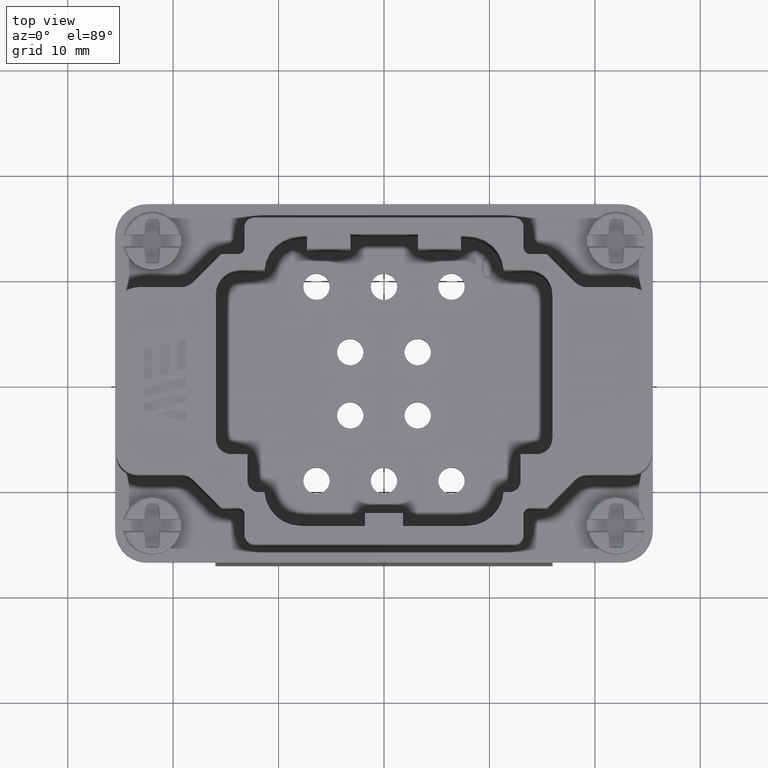
[diagram: clean part render]
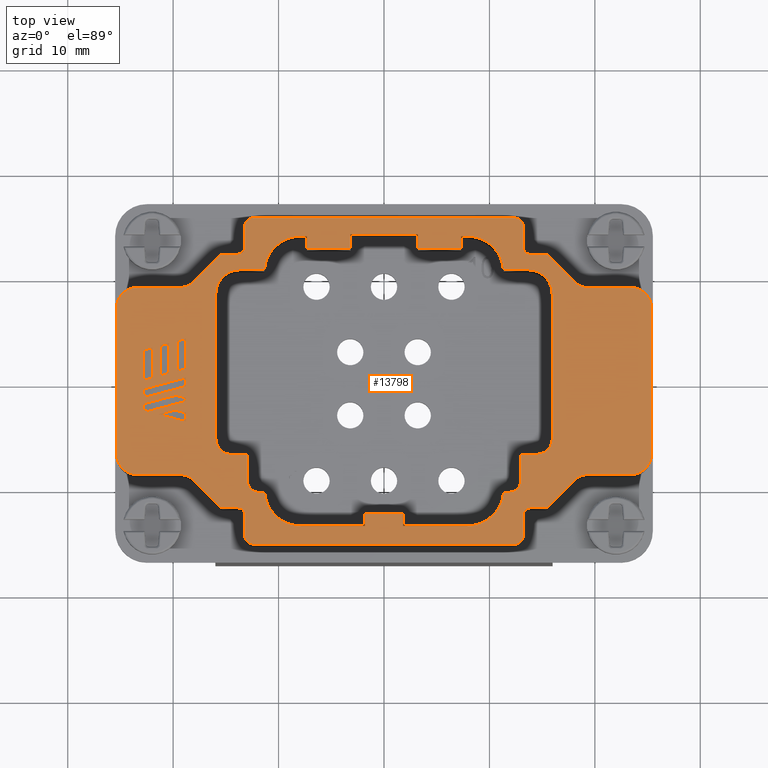
[diagram: same view with one face highlighted and labeled with its STEP entity id]
A machine part, top view. The second image highlights one B-rep face of the part: STEP entity #13798.
In plain terms, the highlighted planar face has unit normal (0, 0, 1).
Its self-contained STEP definition (entity closure, byte-faithful):
#29 = VERTEX_POINT ( 'NONE', #8794 ) ;
#37 = CARTESIAN_POINT ( 'NONE',  ( 0.9992972128804724630, -0.2709507561875582615, -9.882050339881422769E-12 ) ) ;
#114 = CARTESIAN_POINT ( 'NONE',  ( -0.6020824390721221109, 0.4586614173228346636, -9.881913747481739492E-12 ) ) ;
#134 = AXIS2_PLACEMENT_3D ( 'NONE', #18792, #12640, #9411 ) ;
#173 = CARTESIAN_POINT ( 'NONE',  ( -0.7710009350393621785, 0.1498395374015708825, -9.883082978423030926E-12 ) ) ;
#189 = CARTESIAN_POINT ( 'NONE',  ( -0.07086614173219767110, 0.2709507561875582615, -9.883082978423030926E-12 ) ) ;
#204 = EDGE_CURVE ( 'NONE', #8864, #7734, #14656, .T. ) ;
#206 = VERTEX_POINT ( 'NONE', #11365 ) ;
#232 = CARTESIAN_POINT ( 'NONE',  ( -0.7395048917322832871, 0.2709507561875582615, -9.883082978423030926E-12 ) ) ;
#254 = LINE ( 'NONE', #5166, #8190 ) ;
#258 = CARTESIAN_POINT ( 'NONE',  ( 0.000000000000000000, -0.6095334333529134341, -9.882323524680789322E-12 ) ) ;
#301 = LINE ( 'NONE', #19405, #5143 ) ;
#314 = VERTEX_POINT ( 'NONE', #12075 ) ;
#316 = DIRECTION ( 'NONE',  ( 1.000000000000000000, 0.000000000000000000, 0.000000000000000000 ) ) ;
#335 = EDGE_CURVE ( 'NONE', #3251, #7490, #7073, .T. ) ;
#345 = DIRECTION ( 'NONE',  ( 0.9659260331149159828, 0.2588182732167149669, 0.000000000000000000 ) ) ;
#394 = CIRCLE ( 'NONE', #12066, 0.03473028374661321638 ) ;
#413 = EDGE_CURVE ( 'NONE', #12820, #9950, #10316, .T. ) ;
#422 = CARTESIAN_POINT ( 'NONE',  ( 0.4466170449908521412, 0.4154874413342048434, -9.883074782879046536E-12 ) ) ;
#467 = ORIENTED_EDGE ( 'NONE', *, *, #14438, .T. ) ;
#505 = EDGE_LOOP ( 'NONE', ( #2990, #9982, #12910, #7441 ) ) ;
#527 = VERTEX_POINT ( 'NONE', #621 ) ;
#589 = DIRECTION ( 'NONE',  ( -1.000000000000000000, -0.000000000000000000, 0.000000000000000000 ) ) ;
#609 = CARTESIAN_POINT ( 'NONE',  ( 0.7136743232525905034, 0.3683467217888827250, -9.882323524680789322E-12 ) ) ;
#621 = CARTESIAN_POINT ( 'NONE',  ( -0.07086614173219765722, -0.4940944880137519424, -9.883080929537033617E-12 ) ) ;
#689 = DIRECTION ( 'NONE',  ( 1.000000000000000000, 0.000000000000000000, 0.000000000000000000 ) ) ;
#729 = ORIENTED_EDGE ( 'NONE', *, *, #967, .T. ) ;
#734 = CARTESIAN_POINT ( 'NONE',  ( -0.7395048917322832871, -0.1518042027559094731, -9.883082978423030926E-12 ) ) ;
#736 = EDGE_CURVE ( 'NONE', #5541, #20300, #8343, .T. ) ;
#744 = VERTEX_POINT ( 'NONE', #6576 ) ;
#782 = VECTOR ( 'NONE', #8783, 39.37007874015748143 ) ;
#786 = EDGE_CURVE ( 'NONE', #8654, #2413, #17726, .T. ) ;
#814 = VECTOR ( 'NONE', #13578, 39.37007874015748143 ) ;
#815 = EDGE_CURVE ( 'NONE', #17679, #12894, #14095, .T. ) ;
#829 = FACE_BOUND ( 'NONE', #12843, .T. ) ;
#871 = CARTESIAN_POINT ( 'NONE',  ( -0.1259842806758984524, 0.4940944883642008345, -9.883080929537033617E-12 ) ) ;
#911 = ORIENTED_EDGE ( 'NONE', *, *, #19395, .T. ) ;
#932 = FACE_BOUND ( 'NONE', #7963, .T. ) ;
#967 = EDGE_CURVE ( 'NONE', #12496, #206, #9290, .T. ) ;
#978 = AXIS2_PLACEMENT_3D ( 'NONE', #4640, #11007, #16669 ) ;
#990 = CARTESIAN_POINT ( 'NONE',  ( 0.6280858950632244309, 0.3249362602318389692, -9.883076831765043845E-12 ) ) ;
#1005 = VECTOR ( 'NONE', #5064, 39.37007874015748143 ) ;
#1016 = CARTESIAN_POINT ( 'NONE',  ( -0.5209507561875590387, -0.4980314960630236043, -9.882323524680789322E-12 ) ) ;
#1018 = EDGE_CURVE ( 'NONE', #10384, #2361, #13004, .T. ) ;
#1033 = CARTESIAN_POINT ( 'NONE',  ( -0.5375347139608641633, 0.4154874413342023454, -9.883074782879046536E-12 ) ) ;
#1045 = VERTEX_POINT ( 'NONE', #8546 ) ;
#1080 = CIRCLE ( 'NONE', #14433, 0.06369491310378071203 ) ;
#1088 = CIRCLE ( 'NONE', #16438, 0.03473028374661321638 ) ;
#1095 = CARTESIAN_POINT ( 'NONE',  ( -0.7809744586614054684, -0.1080855019685078439, -9.883082978423030926E-12 ) ) ;
#1135 = VECTOR ( 'NONE', #8871, 39.37007874015748854 ) ;
#1143 = CARTESIAN_POINT ( 'NONE',  ( -0.8654885925196891261, 0.2709507561875582615, -9.883082978423030926E-12 ) ) ;
#1149 = DIRECTION ( 'NONE',  ( -0.000000000000000000, -0.000000000000000000, -1.000000000000000000 ) ) ;
#1178 = DIRECTION ( 'NONE',  ( -0.9659276012913142750, 0.2588124206130915095, 0.000000000000000000 ) ) ;
#1184 = DIRECTION ( 'NONE',  ( -0.9659238571899644299, 0.2588263937686053895, 0.000000000000000000 ) ) ;
#1249 = EDGE_CURVE ( 'NONE', #3133, #8101, #4338, .T. ) ;
#1288 = DIRECTION ( 'NONE',  ( 0.9659246357372389680, -0.2588234882615607080, 0.000000000000000000 ) ) ;
#1290 = EDGE_CURVE ( 'NONE', #9200, #19750, #10303, .T. ) ;
#1291 = DIRECTION ( 'NONE',  ( -1.000000000000000000, -0.000000000000000000, -0.000000000000000000 ) ) ;
#1318 = ORIENTED_EDGE ( 'NONE', *, *, #1409, .T. ) ;
#1321 = CARTESIAN_POINT ( 'NONE',  ( -0.9205570554001576422, -0.2709507561875582615, -9.882323524680789322E-12 ) ) ;
#1323 = ORIENTED_EDGE ( 'NONE', *, *, #11823, .T. ) ;
#1389 = VECTOR ( 'NONE', #4632, 39.37007874015748143 ) ;
#1408 = ORIENTED_EDGE ( 'NONE', *, *, #20503, .F. ) ;
#1409 = EDGE_CURVE ( 'NONE', #5285, #1720, #3192, .T. ) ;
#1421 = VERTEX_POINT ( 'NONE', #9582 ) ;
#1444 = DIRECTION ( 'NONE',  ( -0.9659270141590197145, -0.2588146118708153920, 0.000000000000000000 ) ) ;
#1448 = CARTESIAN_POINT ( 'NONE',  ( -0.07086614173219765722, -0.5414716929559639791, -9.883080929537033617E-12 ) ) ;
#1512 = VERTEX_POINT ( 'NONE', #14883 ) ;
#1544 = ORIENTED_EDGE ( 'NONE', *, *, #14627, .T. ) ;
#1563 = EDGE_CURVE ( 'NONE', #13114, #9200, #19364, .T. ) ;
#1564 = ORIENTED_EDGE ( 'NONE', *, *, #18916, .T. ) ;
#1608 = VERTEX_POINT ( 'NONE', #6545 ) ;
#1681 = EDGE_CURVE ( 'NONE', #12249, #1918, #15020, .T. ) ;
#1719 = DIRECTION ( 'NONE',  ( -0.000000000000000000, -0.000000000000000000, -1.000000000000000000 ) ) ;
#1720 = VERTEX_POINT ( 'NONE', #871 ) ;
#1721 = DIRECTION ( 'NONE',  ( -1.000000000000000000, -0.000000000000000000, -0.000000000000000000 ) ) ;
#1726 = ORIENTED_EDGE ( 'NONE', *, *, #17977, .T. ) ;
#1774 = DIRECTION ( 'NONE',  ( 0.000000000000000000, 0.000000000000000000, 1.000000000000000000 ) ) ;
#1810 = ORIENTED_EDGE ( 'NONE', *, *, #15471, .T. ) ;
#1826 = CARTESIAN_POINT ( 'NONE',  ( -0.8339930216535355045, 0.2709507561875582615, -9.883082978423030926E-12 ) ) ;
#1836 = CIRCLE ( 'NONE', #14859, 0.05721972462354764366 ) ;
#1893 = CARTESIAN_POINT ( 'NONE',  ( -0.6280858950632244309, 0.3249362602318418003, -9.883076831765043845E-12 ) ) ;
#1912 = DIRECTION ( 'NONE',  ( -0.000000000000000000, -0.000000000000000000, -1.000000000000000000 ) ) ;
#1918 = VERTEX_POINT ( 'NONE', #14143 ) ;
#1946 = EDGE_CURVE ( 'NONE', #12249, #7552, #15921, .T. ) ;
#2014 = VERTEX_POINT ( 'NONE', #12978 ) ;
#2059 = DIRECTION ( 'NONE',  ( 1.000000000000000000, 0.000000000000000000, 0.000000000000000000 ) ) ;
#2060 = DIRECTION ( 'NONE',  ( 0.000000000000000000, -1.000000000000000000, -0.000000000000000000 ) ) ;
#2061 = DIRECTION ( 'NONE',  ( -0.000000000000000000, -0.000000000000000000, -1.000000000000000000 ) ) ;
#2074 = DIRECTION ( 'NONE',  ( -0.000000000000000000, 1.000000000000000000, 0.000000000000000000 ) ) ;
#2079 = LINE ( 'NONE', #8463, #9132 ) ;
#2117 = VECTOR ( 'NONE', #13203, 39.37007874015748143 ) ;
#2128 = DIRECTION ( 'NONE',  ( -0.7071067811865469066, 0.7071067811865479058, -0.000000000000000000 ) ) ;
#2144 = ORIENTED_EDGE ( 'NONE', *, *, #13756, .T. ) ;
#2181 = VECTOR ( 'NONE', #13307, 39.37007874015748143 ) ;
#2216 = ORIENTED_EDGE ( 'NONE', *, *, #4159, .F. ) ;
#2237 = ORIENTED_EDGE ( 'NONE', *, *, #20363, .T. ) ;
#2242 = VERTEX_POINT ( 'NONE', #11925 ) ;
#2306 = LINE ( 'NONE', #8693, #12901 ) ;
#2361 = VERTEX_POINT ( 'NONE', #17033 ) ;
#2386 = CIRCLE ( 'NONE', #18384, 0.04147169312748467951 ) ;
#2394 = LINE ( 'NONE', #20149, #12491 ) ;
#2401 = CIRCLE ( 'NONE', #19412, 0.01504524437653466384 ) ;
#2413 = VERTEX_POINT ( 'NONE', #14011 ) ;
#2450 = LINE ( 'NONE', #5289, #4820 ) ;
#2473 = CIRCLE ( 'NONE', #13821, 0.1359598821038626171 ) ;
#2498 = VERTEX_POINT ( 'NONE', #19010 ) ;
#2506 = CARTESIAN_POINT ( 'NONE',  ( -0.8654885925196891261, 0.1245216240157425158, -9.883083063793278794E-12 ) ) ;
#2539 = VECTOR ( 'NONE', #8436, 39.37007874015748143 ) ;
#2654 = ORIENTED_EDGE ( 'NONE', *, *, #1946, .F. ) ;
#2708 = CARTESIAN_POINT ( 'NONE',  ( -0.7587134282353583670, 0.3496909136678733043, -9.882323524680789322E-12 ) ) ;
#2735 = CARTESIAN_POINT ( 'NONE',  ( -0.9992972128804724630, -0.2709507561875582615, -9.882323524680789322E-12 ) ) ;
#2761 = AXIS2_PLACEMENT_3D ( 'NONE', #6746, #19474, #11555 ) ;
#2772 = DIRECTION ( 'NONE',  ( 0.000000000000000000, 0.000000000000000000, 1.000000000000000000 ) ) ;
#2790 = VECTOR ( 'NONE', #3098, 39.37007874015748143 ) ;
#2824 = EDGE_CURVE ( 'NONE', #7552, #8635, #13371, .T. ) ;
#2892 = EDGE_CURVE ( 'NONE', #3706, #10875, #14382, .T. ) ;
#2897 = EDGE_CURVE ( 'NONE', #11165, #15838, #7810, .T. ) ;
#2950 = CARTESIAN_POINT ( 'NONE',  ( 0.9205570554001576422, -0.5414716932065471999, -9.883082978423030926E-12 ) ) ;
#2958 = CARTESIAN_POINT ( 'NONE',  ( -0.1259842806758984524, 0.5492772933861338469, -9.883080929537033617E-12 ) ) ;
#2972 = DIRECTION ( 'NONE',  ( -0.000000000000000000, -0.000000000000000000, -1.000000000000000000 ) ) ;
#2982 = CARTESIAN_POINT ( 'NONE',  ( 0.9205570554001576422, -0.2709507561875582615, -9.876586643894093314E-12 ) ) ;
#2990 = ORIENTED_EDGE ( 'NONE', *, *, #18965, .T. ) ;
#2995 = CARTESIAN_POINT ( 'NONE',  ( 0.9205570554001576422, -0.2737551575191917164, -9.883082978423030926E-12 ) ) ;
#3013 = ORIENTED_EDGE ( 'NONE', *, *, #10822, .F. ) ;
#3095 = LINE ( 'NONE', #9487, #12174 ) ;
#3098 = DIRECTION ( 'NONE',  ( 0.000000000000000000, 1.000000000000000000, -0.000000000000000000 ) ) ;
#3124 = DIRECTION ( 'NONE',  ( -1.000000000000000000, 2.644956436830829548E-14, -0.000000000000000000 ) ) ;
#3133 = VERTEX_POINT ( 'NONE', #10497 ) ;
#3175 = CIRCLE ( 'NONE', #14849, 0.02432483436362305879 ) ;
#3192 = LINE ( 'NONE', #14167, #14669 ) ;
#3251 = VERTEX_POINT ( 'NONE', #16749 ) ;
#3259 = ORIENTED_EDGE ( 'NONE', *, *, #13096, .T. ) ;
#3282 = LINE ( 'NONE', #4961, #11856 ) ;
#3318 = ORIENTED_EDGE ( 'NONE', *, *, #5682, .T. ) ;
#3354 = VERTEX_POINT ( 'NONE', #9728 ) ;
#3370 = EDGE_CURVE ( 'NONE', #8654, #7490, #5051, .T. ) ;
#3455 = VECTOR ( 'NONE', #1178, 39.37007874015748854 ) ;
#3461 = EDGE_CURVE ( 'NONE', #8740, #18032, #6713, .T. ) ;
#3485 = DIRECTION ( 'NONE',  ( 0.000000000000000000, -1.000000000000000000, -0.000000000000000000 ) ) ;
#3622 = CARTESIAN_POINT ( 'NONE',  ( -0.2874016035105441125, 0.4940944883642008345, -9.883080929537033617E-12 ) ) ;
#3655 = EDGE_CURVE ( 'NONE', #8268, #19913, #5759, .T. ) ;
#3656 = AXIS2_PLACEMENT_3D ( 'NONE', #16569, #6760, #14998 ) ;
#3671 = DIRECTION ( 'NONE',  ( -0.000000000000000000, -0.000000000000000000, -1.000000000000000000 ) ) ;
#3706 = VERTEX_POINT ( 'NONE', #8704 ) ;
#3713 = VECTOR ( 'NONE', #3887, 39.37007874015748143 ) ;
#3737 = DIRECTION ( 'NONE',  ( -1.000000000000000000, -0.000000000000000000, -0.000000000000000000 ) ) ;
#3752 = CARTESIAN_POINT ( 'NONE',  ( -0.7395048917322835091, -0.06366312007874647128, -9.883083063793278794E-12 ) ) ;
#3792 = DIRECTION ( 'NONE',  ( 0.000000000000000000, 1.000000000000000000, -0.000000000000000000 ) ) ;
#3830 = VECTOR ( 'NONE', #11142, 39.37007874015748143 ) ;
#3838 = ORIENTED_EDGE ( 'NONE', *, *, #6915, .T. ) ;
#3869 = ORIENTED_EDGE ( 'NONE', *, *, #4130, .T. ) ;
#3887 = DIRECTION ( 'NONE',  ( -0.000000000000000000, 1.000000000000000000, 0.000000000000000000 ) ) ;
#3900 = LINE ( 'NONE', #12260, #14220 ) ;
#3919 = CARTESIAN_POINT ( 'NONE',  ( 0.1259842806758984801, 0.4940944883642008345, -9.883080929537033617E-12 ) ) ;
#3979 = ORIENTED_EDGE ( 'NONE', *, *, #18496, .T. ) ;
#3987 = DIRECTION ( 'NONE',  ( -0.000000000000000000, 1.000000000000000000, 0.000000000000000000 ) ) ;
#4035 = EDGE_CURVE ( 'NONE', #13008, #3133, #2386, .T. ) ;
#4062 = CARTESIAN_POINT ( 'NONE',  ( -0.8418203051181103458, -0.1243890452755969794, -9.883083063793278794E-12 ) ) ;
#4089 = ORIENTED_EDGE ( 'NONE', *, *, #4691, .T. ) ;
#4105 = CIRCLE ( 'NONE', #17441, 0.04147169312748467951 ) ;
#4130 = EDGE_CURVE ( 'NONE', #16872, #5005, #17468, .T. ) ;
#4159 = EDGE_CURVE ( 'NONE', #5772, #29, #6206, .T. ) ;
#4173 = EDGE_CURVE ( 'NONE', #206, #7523, #12464, .T. ) ;
#4198 = ORIENTED_EDGE ( 'NONE', *, *, #6890, .T. ) ;
#4201 = DIRECTION ( 'NONE',  ( 1.000000000000000000, 0.000000000000000000, -0.000000000000000000 ) ) ;
#4247 = CARTESIAN_POINT ( 'NONE',  ( -0.9205570554001576422, 0.2709507561875582615, -9.882323524680789322E-12 ) ) ;
#4290 = ORIENTED_EDGE ( 'NONE', *, *, #16029, .T. ) ;
#4338 = LINE ( 'NONE', #18430, #7677 ) ;
#4354 = VERTEX_POINT ( 'NONE', #15654 ) ;
#4375 = AXIS2_PLACEMENT_3D ( 'NONE', #17982, #3671, #15440 ) ;
#4376 = VERTEX_POINT ( 'NONE', #7622 ) ;
#4377 = AXIS2_PLACEMENT_3D ( 'NONE', #2982, #8019, #20642 ) ;
#4391 = VERTEX_POINT ( 'NONE', #4583 ) ;
#4398 = ORIENTED_EDGE ( 'NONE', *, *, #11488, .T. ) ;
#4411 = LINE ( 'NONE', #13609, #14875 ) ;
#4415 = VERTEX_POINT ( 'NONE', #15758 ) ;
#4422 = CIRCLE ( 'NONE', #16099, 0.1359598821038626171 ) ;
#4434 = CARTESIAN_POINT ( 'NONE',  ( -0.5098455800548660211, -0.2737551575191917719, -9.883080929537033617E-12 ) ) ;
#4465 = CIRCLE ( 'NONE', #134, 0.02432483436362305879 ) ;
#4528 = VECTOR ( 'NONE', #11512, 39.37007874015748143 ) ;
#4550 = VERTEX_POINT ( 'NONE', #9803 ) ;
#4583 = CARTESIAN_POINT ( 'NONE',  ( -0.5708661704396771341, -0.2737551575191903286, -9.883074782879046536E-12 ) ) ;
#4589 = CARTESIAN_POINT ( 'NONE',  ( 0.9205570554001576422, 0.3496909136678733043, -9.882323524680789322E-12 ) ) ;
#4591 = ORIENTED_EDGE ( 'NONE', *, *, #3461, .T. ) ;
#4632 = DIRECTION ( 'NONE',  ( -0.000000000000000000, -1.000000000000000000, -0.000000000000000000 ) ) ;
#4640 = CARTESIAN_POINT ( 'NONE',  ( 0.4862204724409449064, 0.5748031496063030765, -9.882323524680789322E-12 ) ) ;
#4653 = DIRECTION ( 'NONE',  ( 1.000000000000000000, 0.000000000000000000, 0.000000000000000000 ) ) ;
#4656 = DIRECTION ( 'NONE',  ( 1.000000000000000000, 0.000000000000000000, -0.000000000000000000 ) ) ;
#4657 = EDGE_CURVE ( 'NONE', #5575, #2242, #6462, .T. ) ;
#4670 = VECTOR ( 'NONE', #12626, 39.37007874015748143 ) ;
#4671 = EDGE_CURVE ( 'NONE', #3251, #13948, #15078, .T. ) ;
#4691 = EDGE_CURVE ( 'NONE', #5079, #29, #394, .T. ) ;
#4703 = DIRECTION ( 'NONE',  ( 0.000000000000000000, -1.000000000000000000, -0.000000000000000000 ) ) ;
#4769 = EDGE_CURVE ( 'NONE', #7759, #12042, #2401, .T. ) ;
#4786 = CARTESIAN_POINT ( 'NONE',  ( -0.8969856003937087818, -0.08516512795276263981, -9.883082978423030926E-12 ) ) ;
#4796 = ORIENTED_EDGE ( 'NONE', *, *, #11334, .T. ) ;
#4799 = ORIENTED_EDGE ( 'NONE', *, *, #4035, .T. ) ;
#4820 = VECTOR ( 'NONE', #589, 39.37007874015748143 ) ;
#4840 = CARTESIAN_POINT ( 'NONE',  ( -0.8817501870078702231, -0.1136900098425236150, -9.883082978423030926E-12 ) ) ;
#4846 = CIRCLE ( 'NONE', #18166, 0.1359598821038626171 ) ;
#4865 = LINE ( 'NONE', #258, #18173 ) ;
#4886 = EDGE_CURVE ( 'NONE', #17921, #7598, #16087, .T. ) ;
#4888 = CARTESIAN_POINT ( 'NONE',  ( -0.5209507561875590387, -0.4980314960630236043, -9.882323524680789322E-12 ) ) ;
#4918 = EDGE_CURVE ( 'NONE', #18937, #744, #5080, .T. ) ;
#4961 = CARTESIAN_POINT ( 'NONE',  ( -0.8024965059055159111, 0.2709507561875582615, -9.883082978423030926E-12 ) ) ;
#5005 = VERTEX_POINT ( 'NONE', #16802 ) ;
#5051 = CIRCLE ( 'NONE', #18039, 0.01504524437653466384 ) ;
#5064 = DIRECTION ( 'NONE',  ( -0.000000000000000000, 1.000000000000000000, 0.000000000000000000 ) ) ;
#5079 = VERTEX_POINT ( 'NONE', #20342 ) ;
#5080 = CIRCLE ( 'NONE', #16750, 0.07874015748031489015 ) ;
#5143 = VECTOR ( 'NONE', #17948, 39.37007874015748854 ) ;
#5166 = CARTESIAN_POINT ( 'NONE',  ( -0.7136743232525905034, -0.3683467217888827250, -9.882323524680789322E-12 ) ) ;
#5215 = CARTESIAN_POINT ( 'NONE',  ( -0.8339930216535353935, 0.1329609153543252209, -9.883083063793278794E-12 ) ) ;
#5234 = CARTESIAN_POINT ( 'NONE',  ( 0.4466170449822030042, -0.4154874413342046768, -9.883076831765043845E-12 ) ) ;
#5267 = ORIENTED_EDGE ( 'NONE', *, *, #3655, .T. ) ;
#5273 = ORIENTED_EDGE ( 'NONE', *, *, #18138, .T. ) ;
#5281 = EDGE_CURVE ( 'NONE', #7385, #9371, #1080, .T. ) ;
#5285 = VERTEX_POINT ( 'NONE', #3622 ) ;
#5289 = CARTESIAN_POINT ( 'NONE',  ( 0.9205570554001576422, -0.4154874413342046768, -9.883082978423030926E-12 ) ) ;
#5364 = LINE ( 'NONE', #11738, #13486 ) ;
#5366 = CARTESIAN_POINT ( 'NONE',  ( -0.4466170449908540840, 0.4154874413342027895, -9.883074782879046536E-12 ) ) ;
#5381 = LINE ( 'NONE', #8425, #6769 ) ;
#5429 = FACE_BOUND ( 'NONE', #13914, .T. ) ;
#5446 = VECTOR ( 'NONE', #12874, 39.37007874015748143 ) ;
#5452 = VERTEX_POINT ( 'NONE', #18439 ) ;
#5463 = CARTESIAN_POINT ( 'NONE',  ( 0.5098455800548661321, 0.2709507561875582615, -9.883082978423030926E-12 ) ) ;
#5467 = DIRECTION ( 'NONE',  ( 1.000000000000000000, 0.000000000000000000, 0.000000000000000000 ) ) ;
#5487 = CARTESIAN_POINT ( 'NONE',  ( -0.7395048917322835091, -0.02004156496063700874, -9.883084130921401383E-12 ) ) ;
#5508 = VECTOR ( 'NONE', #4703, 39.37007874015748143 ) ;
#5541 = VERTEX_POINT ( 'NONE', #17199 ) ;
#5564 = LINE ( 'NONE', #11938, #16451 ) ;
#5575 = VERTEX_POINT ( 'NONE', #20318 ) ;
#5627 = DIRECTION ( 'NONE',  ( 1.000000000000000000, 0.000000000000000000, 0.000000000000000000 ) ) ;
#5655 = ORIENTED_EDGE ( 'NONE', *, *, #9720, .F. ) ;
#5682 = EDGE_CURVE ( 'NONE', #7996, #10250, #6448, .T. ) ;
#5697 = DIRECTION ( 'NONE',  ( -0.000000000000000000, -0.000000000000000000, -1.000000000000000000 ) ) ;
#5708 = EDGE_CURVE ( 'NONE', #4354, #314, #16120, .T. ) ;
#5714 = CARTESIAN_POINT ( 'NONE',  ( -0.7395048917322832871, 0.2709507561875582615, -9.883082978423030926E-12 ) ) ;
#5747 = ORIENTED_EDGE ( 'NONE', *, *, #6836, .T. ) ;
#5759 = LINE ( 'NONE', #12248, #3713 ) ;
#5765 = LINE ( 'NONE', #5973, #7171 ) ;
#5770 = CARTESIAN_POINT ( 'NONE',  ( -0.8817501870078702231, -0.05815563976378659850, -9.883082978423030926E-12 ) ) ;
#5772 = VERTEX_POINT ( 'NONE', #16447 ) ;
#5804 = VECTOR ( 'NONE', #15092, 39.37007874015748143 ) ;
#5846 = CARTESIAN_POINT ( 'NONE',  ( -0.5209507561875590387, 0.5748031496062991907, -9.882323524680789322E-12 ) ) ;
#5893 = ORIENTED_EDGE ( 'NONE', *, *, #14639, .F. ) ;
#5928 = DIRECTION ( 'NONE',  ( 0.9659262140732628454, 0.2588175978678677325, 0.000000000000000000 ) ) ;
#5943 = VERTEX_POINT ( 'NONE', #2958 ) ;
#5944 = ORIENTED_EDGE ( 'NONE', *, *, #736, .T. ) ;
#5973 = CARTESIAN_POINT ( 'NONE',  ( 0.6020824390721221109, 0.4737066616994015655, -9.882323524680789322E-12 ) ) ;
#5978 = CARTESIAN_POINT ( 'NONE',  ( 0.6020824390721140063, 0.4737066616993854673, -9.881913747481739492E-12 ) ) ;
#6025 = DIRECTION ( 'NONE',  ( 1.000000000000000000, -2.144478939168306989E-15, 0.000000000000000000 ) ) ;
#6059 = LINE ( 'NONE', #19001, #5508 ) ;
#6098 = EDGE_CURVE ( 'NONE', #18783, #1421, #4105, .T. ) ;
#6130 = VECTOR ( 'NONE', #4201, 39.37007874015748143 ) ;
#6206 = LINE ( 'NONE', #11211, #1389 ) ;
#6239 = ORIENTED_EDGE ( 'NONE', *, *, #335, .F. ) ;
#6307 = EDGE_CURVE ( 'NONE', #744, #13948, #8909, .T. ) ;
#6348 = CARTESIAN_POINT ( 'NONE',  ( -0.8969856003937087818, 0.2709507561875582615, -9.883082978423030926E-12 ) ) ;
#6391 = VECTOR ( 'NONE', #6442, 39.37007874015748854 ) ;
#6430 = ORIENTED_EDGE ( 'NONE', *, *, #14403, .T. ) ;
#6431 = CARTESIAN_POINT ( 'NONE',  ( 0.7587134282353583670, 0.3496909136678733043, -9.882323524680789322E-12 ) ) ;
#6442 = DIRECTION ( 'NONE',  ( 0.9659243834146437058, 0.2588244299231435286, 0.000000000000000000 ) ) ;
#6448 = CIRCLE ( 'NONE', #16440, 0.02432483436362305879 ) ;
#6462 = LINE ( 'NONE', #15099, #9085 ) ;
#6474 = ORIENTED_EDGE ( 'NONE', *, *, #6098, .T. ) ;
#6509 = VERTEX_POINT ( 'NONE', #16384 ) ;
#6538 = EDGE_CURVE ( 'NONE', #10875, #9371, #2079, .T. ) ;
#6545 = CARTESIAN_POINT ( 'NONE',  ( -0.8969856003937087818, -0.02963101377953160365, -9.883083063793278794E-12 ) ) ;
#6560 = DIRECTION ( 'NONE',  ( -0.000000000000000000, -0.000000000000000000, -1.000000000000000000 ) ) ;
#6576 = CARTESIAN_POINT ( 'NONE',  ( -0.9205570554001576422, 0.3496909136678731933, -9.882323524680789322E-12 ) ) ;
#6585 = CARTESIAN_POINT ( 'NONE',  ( 0.9205570554001576422, 0.5414716933027048373, -9.883082978423030926E-12 ) ) ;
#6611 = EDGE_CURVE ( 'NONE', #17921, #9950, #10918, .T. ) ;
#6632 = CARTESIAN_POINT ( 'NONE',  ( 0.9205570554001576422, -0.4154874413342046768, -9.883082978423030926E-12 ) ) ;
#6674 = ORIENTED_EDGE ( 'NONE', *, *, #6832, .T. ) ;
#6703 = DIRECTION ( 'NONE',  ( 0.000000000000000000, 1.000000000000000000, -0.000000000000000000 ) ) ;
#6713 = CIRCLE ( 'NONE', #18365, 0.09055118110236221041 ) ;
#6729 = CARTESIAN_POINT ( 'NONE',  ( 0.07086614173219765722, -0.5414716930812558671, -9.883080929537033617E-12 ) ) ;
#6745 = AXIS2_PLACEMENT_3D ( 'NONE', #19698, #5697, #689 ) ;
#6746 = CARTESIAN_POINT ( 'NONE',  ( -0.6020824390721221109, -0.4586614173228346636, -9.881913747481739492E-12 ) ) ;
#6760 = DIRECTION ( 'NONE',  ( 0.000000000000000000, 0.000000000000000000, 1.000000000000000000 ) ) ;
#6767 = CARTESIAN_POINT ( 'NONE',  ( 0.7587134282353583670, -0.4133858267716535861, -9.882323524680789322E-12 ) ) ;
#6769 = VECTOR ( 'NONE', #18012, 39.37007874015748143 ) ;
#6800 = CIRCLE ( 'NONE', #18128, 0.07874015748031489015 ) ;
#6811 = ORIENTED_EDGE ( 'NONE', *, *, #15828, .T. ) ;
#6832 = EDGE_CURVE ( 'NONE', #7541, #6509, #9968, .T. ) ;
#6836 = EDGE_CURVE ( 'NONE', #14866, #5285, #16227, .T. ) ;
#6843 = AXIS2_PLACEMENT_3D ( 'NONE', #18167, #15244, #10249 ) ;
#6890 = EDGE_CURVE ( 'NONE', #5943, #7004, #11323, .T. ) ;
#6915 = EDGE_CURVE ( 'NONE', #16016, #19300, #8707, .T. ) ;
#6938 = DIRECTION ( 'NONE',  ( -0.9659265684825832921, -0.2588162751827275398, 0.000000000000000000 ) ) ;
#7004 = VERTEX_POINT ( 'NONE', #8914 ) ;
#7073 = LINE ( 'NONE', #13439, #8994 ) ;
#7085 = DIRECTION ( 'NONE',  ( 0.000000000000000000, -1.000000000000000000, -0.000000000000000000 ) ) ;
#7130 = ORIENTED_EDGE ( 'NONE', *, *, #5281, .T. ) ;
#7171 = VECTOR ( 'NONE', #12350, 39.37007874015748143 ) ;
#7178 = CARTESIAN_POINT ( 'NONE',  ( 0.4862204724409449064, -0.5748031496062991907, -9.882323524680789322E-12 ) ) ;
#7192 = CARTESIAN_POINT ( 'NONE',  ( -0.7710009350393621785, 0.2709507561875582615, -9.883082978423030926E-12 ) ) ;
#7259 = VERTEX_POINT ( 'NONE', #9840 ) ;
#7294 = LINE ( 'NONE', #13456, #1135 ) ;
#7306 = EDGE_CURVE ( 'NONE', #18842, #15352, #4422, .T. ) ;
#7317 = CARTESIAN_POINT ( 'NONE',  ( 0.5708661704396771341, -0.2165354328956441143, -9.883074782879046536E-12 ) ) ;
#7348 = LINE ( 'NONE', #2950, #15194 ) ;
#7350 = DIRECTION ( 'NONE',  ( 1.000000000000000000, -5.361197347920767866E-15, 0.000000000000000000 ) ) ;
#7385 = VERTEX_POINT ( 'NONE', #7976 ) ;
#7413 = VERTEX_POINT ( 'NONE', #9640 ) ;
#7419 = VERTEX_POINT ( 'NONE', #13172 ) ;
#7438 = VERTEX_POINT ( 'NONE', #5234 ) ;
#7441 = ORIENTED_EDGE ( 'NONE', *, *, #14453, .T. ) ;
#7469 = VECTOR ( 'NONE', #2074, 39.37007874015748143 ) ;
#7490 = VERTEX_POINT ( 'NONE', #13577 ) ;
#7523 = VERTEX_POINT ( 'NONE', #3752 ) ;
#7531 = CARTESIAN_POINT ( 'NONE',  ( 0.5452755905511811330, -0.4737066616994015655, -9.882323524680789322E-12 ) ) ;
#7541 = VERTEX_POINT ( 'NONE', #4062 ) ;
#7552 = VERTEX_POINT ( 'NONE', #13677 ) ;
#7598 = VERTEX_POINT ( 'NONE', #5846 ) ;
#7622 = CARTESIAN_POINT ( 'NONE',  ( -0.8969856003937087818, -0.05407343503937600548, -9.883082530229218308E-12 ) ) ;
#7629 = EDGE_CURVE ( 'NONE', #7734, #18320, #10754, .T. ) ;
#7658 = CARTESIAN_POINT ( 'NONE',  ( -0.7395048917322835091, 0.04517282480314567528, -9.883083063793278794E-12 ) ) ;
#7677 = VECTOR ( 'NONE', #12183, 39.37007874015748143 ) ;
#7713 = LINE ( 'NONE', #20232, #14483 ) ;
#7720 = LINE ( 'NONE', #13977, #17881 ) ;
#7732 = EDGE_CURVE ( 'NONE', #1045, #5452, #1088, .T. ) ;
#7733 = CIRCLE ( 'NONE', #4375, 0.1359598821038626171 ) ;
#7734 = VERTEX_POINT ( 'NONE', #1033 ) ;
#7742 = CARTESIAN_POINT ( 'NONE',  ( -0.4466170449822035593, -0.4154874413342046768, -9.883076831765043845E-12 ) ) ;
#7759 = VERTEX_POINT ( 'NONE', #19480 ) ;
#7765 = EDGE_CURVE ( 'NONE', #7004, #16047, #20667, .T. ) ;
#7789 = DIRECTION ( 'NONE',  ( 1.000000000000000000, 0.000000000000000000, -0.000000000000000000 ) ) ;
#7801 = CARTESIAN_POINT ( 'NONE',  ( 0.5452755905511811330, -0.4980314960630236043, -9.882323524680789322E-12 ) ) ;
#7810 = LINE ( 'NONE', #173, #6391 ) ;
#7816 = VECTOR ( 'NONE', #7789, 39.37007874015748143 ) ;
#7821 = VECTOR ( 'NONE', #6703, 39.37007874015748143 ) ;
#7827 = DIRECTION ( 'NONE',  ( -1.000000000000000000, -0.000000000000000000, 0.000000000000000000 ) ) ;
#7845 = ORIENTED_EDGE ( 'NONE', *, *, #7629, .T. ) ;
#7860 = LINE ( 'NONE', #17239, #19180 ) ;
#7875 = CIRCLE ( 'NONE', #19518, 0.06369491310378071203 ) ;
#7888 = EDGE_CURVE ( 'NONE', #16047, #17372, #5381, .T. ) ;
#7963 = EDGE_LOOP ( 'NONE', ( #4198, #18368, #10225, #1544, #2144, #11426, #12137, #4591, #9419, #20599, #12424, #17184, #6474, #4290, #17970, #10161, #5267, #14663, #18102, #3979, #15618, #1323, #4799, #13091, #6811, #467, #17912, #20315, #7845, #4398, #1810, #5747, #1318, #19468 ) ) ;
#7976 = CARTESIAN_POINT ( 'NONE',  ( 0.7136743232525873948, -0.3683467217888811152, -9.882323524680789322E-12 ) ) ;
#7989 = CARTESIAN_POINT ( 'NONE',  ( -0.9205570554001576422, -0.3496909136678733043, -9.882323524680789322E-12 ) ) ;
#7996 = VERTEX_POINT ( 'NONE', #16653 ) ;
#8019 = DIRECTION ( 'NONE',  ( -0.000000000000000000, -0.000000000000000000, -1.000000000000000000 ) ) ;
#8101 = VERTEX_POINT ( 'NONE', #4434 ) ;
#8107 = VECTOR ( 'NONE', #6938, 39.37007874015748854 ) ;
#8190 = VECTOR ( 'NONE', #2128, 39.37007874015748854 ) ;
#8210 = CARTESIAN_POINT ( 'NONE',  ( -0.8339930216535353935, 0.01985467519684397733, -9.883083063793278794E-12 ) ) ;
#8220 = ORIENTED_EDGE ( 'NONE', *, *, #8559, .T. ) ;
#8226 = ORIENTED_EDGE ( 'NONE', *, *, #2897, .T. ) ;
#8268 = VERTEX_POINT ( 'NONE', #6729 ) ;
#8275 = CARTESIAN_POINT ( 'NONE',  ( -0.5209507561875590387, 0.5748031496062991907, -9.882323524680789322E-12 ) ) ;
#8315 = CARTESIAN_POINT ( 'NONE',  ( -0.5452755905511811330, -0.4980314960630236043, -9.882323524680789322E-12 ) ) ;
#8343 = CIRCLE ( 'NONE', #15675, 0.02432483436362305879 ) ;
#8355 = AXIS2_PLACEMENT_3D ( 'NONE', #10491, #10381, #7350 ) ;
#8375 = CARTESIAN_POINT ( 'NONE',  ( 0.9205570554001576422, 0.4154874413342047323, -9.883082978423030926E-12 ) ) ;
#8406 = CARTESIAN_POINT ( 'NONE',  ( 0.2874016035105441125, 0.2709507561875582615, -9.883082978423030926E-12 ) ) ;
#8425 = CARTESIAN_POINT ( 'NONE',  ( 0.9205570554001576422, 0.4940944883642008345, -9.883082978423030926E-12 ) ) ;
#8436 = DIRECTION ( 'NONE',  ( 0.000000000000000000, -1.000000000000000000, -0.000000000000000000 ) ) ;
#8463 = CARTESIAN_POINT ( 'NONE',  ( 0.7587134282353583670, -0.3496909136678733043, -9.882323524680789322E-12 ) ) ;
#8464 = VECTOR ( 'NONE', #345, 39.37007874015748854 ) ;
#8536 = CARTESIAN_POINT ( 'NONE',  ( -0.3110236220489618342, 0.4055118111988464946, -9.883074782879046536E-12 ) ) ;
#8546 = CARTESIAN_POINT ( 'NONE',  ( -0.5209507561875590387, -0.5748031496062991907, -9.882323524680789322E-12 ) ) ;
#8555 = VECTOR ( 'NONE', #11620, 39.37007874015748854 ) ;
#8559 = EDGE_CURVE ( 'NONE', #4376, #1608, #5564, .T. ) ;
#8562 = ORIENTED_EDGE ( 'NONE', *, *, #4657, .T. ) ;
#8614 = LINE ( 'NONE', #8406, #2181 ) ;
#8635 = VERTEX_POINT ( 'NONE', #2735 ) ;
#8654 = VERTEX_POINT ( 'NONE', #20605 ) ;
#8658 = ORIENTED_EDGE ( 'NONE', *, *, #413, .T. ) ;
#8693 = CARTESIAN_POINT ( 'NONE',  ( -0.6280858950632245419, 0.2709507561875582615, -9.883082978423030926E-12 ) ) ;
#8701 = VECTOR ( 'NONE', #1291, 39.37007874015748143 ) ;
#8704 = CARTESIAN_POINT ( 'NONE',  ( 0.9992972128804724630, -0.2709507561875583170, -9.879318491887758849E-12 ) ) ;
#8706 = EDGE_CURVE ( 'NONE', #13676, #8740, #17659, .T. ) ;
#8707 = LINE ( 'NONE', #11935, #8107 ) ;
#8740 = VERTEX_POINT ( 'NONE', #9844 ) ;
#8752 = EDGE_LOOP ( 'NONE', ( #8226, #1726, #14462, #18846 ) ) ;
#8781 = LINE ( 'NONE', #7531, #10171 ) ;
#8783 = DIRECTION ( 'NONE',  ( 0.000000000000000000, -1.000000000000000000, -0.000000000000000000 ) ) ;
#8794 = CARTESIAN_POINT ( 'NONE',  ( 0.5209507561875590387, -0.5748031496062991907, -9.882323524680789322E-12 ) ) ;
#8795 = ORIENTED_EDGE ( 'NONE', *, *, #3370, .T. ) ;
#8801 = ORIENTED_EDGE ( 'NONE', *, *, #4671, .T. ) ;
#8864 = VERTEX_POINT ( 'NONE', #1893 ) ;
#8866 = CARTESIAN_POINT ( 'NONE',  ( 0.7587134282353583670, -0.3496909136678733043, -9.882323524680789322E-12 ) ) ;
#8871 = DIRECTION ( 'NONE',  ( -0.7071067811865469066, -0.7071067811865479058, -0.000000000000000000 ) ) ;
#8909 = LINE ( 'NONE', #18497, #6130 ) ;
#8914 = CARTESIAN_POINT ( 'NONE',  ( 0.1259842806758984524, 0.5492772933861338469, -9.883080929537033617E-12 ) ) ;
#8919 = DIRECTION ( 'NONE',  ( -0.000000000000000000, 1.000000000000000000, 0.000000000000000000 ) ) ;
#8920 = VERTEX_POINT ( 'NONE', #2506 ) ;
#8984 = FACE_OUTER_BOUND ( 'NONE', #19976, .T. ) ;
#8991 = DIRECTION ( 'NONE',  ( 1.000000000000000000, 0.000000000000000000, 0.000000000000000000 ) ) ;
#8994 = VECTOR ( 'NONE', #20002, 39.37007874015748854 ) ;
#9004 = ORIENTED_EDGE ( 'NONE', *, *, #9077, .T. ) ;
#9011 = VECTOR ( 'NONE', #16664, 39.37007874015748143 ) ;
#9050 = DIRECTION ( 'NONE',  ( 1.000000000000000000, 0.000000000000000000, 0.000000000000000000 ) ) ;
#9077 = EDGE_CURVE ( 'NONE', #14232, #2413, #4465, .T. ) ;
#9085 = VECTOR ( 'NONE', #16667, 39.37007874015748854 ) ;
#9099 = DIRECTION ( 'NONE',  ( -0.000000000000000000, -0.000000000000000000, -1.000000000000000000 ) ) ;
#9132 = VECTOR ( 'NONE', #3737, 39.37007874015748143 ) ;
#9171 = CARTESIAN_POINT ( 'NONE',  ( -0.8969856003937087818, -0.02963101377953166263, -9.883082978423030926E-12 ) ) ;
#9200 = VERTEX_POINT ( 'NONE', #5215 ) ;
#9216 = CARTESIAN_POINT ( 'NONE',  ( 0.9205570554001576422, -0.2737551575191917164, -9.883082978423030926E-12 ) ) ;
#9290 = LINE ( 'NONE', #4786, #4670 ) ;
#9326 = EDGE_CURVE ( 'NONE', #2014, #7413, #18349, .T. ) ;
#9371 = VERTEX_POINT ( 'NONE', #8866 ) ;
#9382 = VERTEX_POINT ( 'NONE', #10020 ) ;
#9386 = CARTESIAN_POINT ( 'NONE',  ( -0.7395048917322835091, 0.1582790649606239941, -9.883083063793278794E-12 ) ) ;
#9404 = VECTOR ( 'NONE', #1288, 39.37007874015748854 ) ;
#9411 = DIRECTION ( 'NONE',  ( 1.000000000000000000, 0.000000000000000000, 0.000000000000000000 ) ) ;
#9419 = ORIENTED_EDGE ( 'NONE', *, *, #20199, .T. ) ;
#9436 = EDGE_CURVE ( 'NONE', #9382, #11165, #18248, .T. ) ;
#9487 = CARTESIAN_POINT ( 'NONE',  ( -0.6020824390721221109, -0.4737066616994015655, -9.882323524680789322E-12 ) ) ;
#9509 = CARTESIAN_POINT ( 'NONE',  ( 0.5452755905511811330, 0.4980314960630236043, -9.882323524680789322E-12 ) ) ;
#9576 = LINE ( 'NONE', #9171, #12191 ) ;
#9582 = CARTESIAN_POINT ( 'NONE',  ( 0.4683738869273819660, -0.4154874412465927036, -9.883074782879046536E-12 ) ) ;
#9640 = CARTESIAN_POINT ( 'NONE',  ( -0.7395048917322835091, -0.1518042027559098339, -9.883084130921401383E-12 ) ) ;
#9647 = CARTESIAN_POINT ( 'NONE',  ( 0.2874016035105441125, 0.5414716933027048373, -9.883080929537033617E-12 ) ) ;
#9671 = EDGE_CURVE ( 'NONE', #12894, #1512, #6800, .T. ) ;
#9683 = DIRECTION ( 'NONE',  ( -0.000000000000000000, -0.000000000000000000, -1.000000000000000000 ) ) ;
#9687 = VECTOR ( 'NONE', #17327, 39.37007874015748143 ) ;
#9720 = EDGE_CURVE ( 'NONE', #1045, #10250, #14486, .T. ) ;
#9728 = CARTESIAN_POINT ( 'NONE',  ( 0.3110236219779745626, -0.5414716932065475330, -9.883074782879046536E-12 ) ) ;
#9735 = LINE ( 'NONE', #17756, #11503 ) ;
#9803 = CARTESIAN_POINT ( 'NONE',  ( -0.3110236220489612236, 0.5414716933027069468, -9.883074782879046536E-12 ) ) ;
#9811 = CARTESIAN_POINT ( 'NONE',  ( -0.5452755905511811330, 0.4737066616994015655, -9.882323524680789322E-12 ) ) ;
#9820 = LINE ( 'NONE', #609, #19160 ) ;
#9838 = EDGE_CURVE ( 'NONE', #12691, #13676, #2473, .T. ) ;
#9840 = CARTESIAN_POINT ( 'NONE',  ( -0.7395048917322835091, 0.01256597440944440605, -9.883083063793278794E-12 ) ) ;
#9844 = CARTESIAN_POINT ( 'NONE',  ( 0.5375347139608621649, 0.4154874413342027895, -9.883074782879046536E-12 ) ) ;
#9866 = AXIS2_PLACEMENT_3D ( 'NONE', #7317, #9099, #8991 ) ;
#9909 = VECTOR ( 'NONE', #17139, 39.37007874015748143 ) ;
#9943 = CARTESIAN_POINT ( 'NONE',  ( -0.3110236220473865942, -0.4055118111026810857, -9.883074782879046536E-12 ) ) ;
#9949 = LINE ( 'NONE', #232, #4528 ) ;
#9950 = VERTEX_POINT ( 'NONE', #19520 ) ;
#9960 = DIRECTION ( 'NONE',  ( -1.008245200014579965E-15, -1.000000000000000000, -0.000000000000000000 ) ) ;
#9968 = LINE ( 'NONE', #14460, #8464 ) ;
#9974 = EDGE_CURVE ( 'NONE', #11012, #9382, #301, .T. ) ;
#9982 = ORIENTED_EDGE ( 'NONE', *, *, #1563, .T. ) ;
#10020 = CARTESIAN_POINT ( 'NONE',  ( -0.7710009350393622896, 0.03673374999999504120, -9.883083063793278794E-12 ) ) ;
#10100 = EDGE_CURVE ( 'NONE', #7385, #2361, #7294, .T. ) ;
#10161 = ORIENTED_EDGE ( 'NONE', *, *, #18552, .T. ) ;
#10171 = VECTOR ( 'NONE', #3124, 39.37007874015748143 ) ;
#10204 = LINE ( 'NONE', #14902, #5804 ) ;
#10218 = VECTOR ( 'NONE', #20213, 39.37007874015748143 ) ;
#10225 = ORIENTED_EDGE ( 'NONE', *, *, #7888, .T. ) ;
#10249 = DIRECTION ( 'NONE',  ( 1.000000000000000000, 0.000000000000000000, -0.000000000000000000 ) ) ;
#10250 = VERTEX_POINT ( 'NONE', #1016 ) ;
#10303 = LINE ( 'NONE', #15305, #9011 ) ;
#10316 = CIRCLE ( 'NONE', #978, 0.03473028374661321638 ) ;
#10318 = ORIENTED_EDGE ( 'NONE', *, *, #12345, .F. ) ;
#10340 = CARTESIAN_POINT ( 'NONE',  ( 0.9205570554001576422, 0.5414716933027048373, -9.883082978423030926E-12 ) ) ;
#10381 = DIRECTION ( 'NONE',  ( -0.000000000000000000, -0.000000000000000000, -1.000000000000000000 ) ) ;
#10384 = VERTEX_POINT ( 'NONE', #19890 ) ;
#10426 = ORIENTED_EDGE ( 'NONE', *, *, #17687, .F. ) ;
#10491 = CARTESIAN_POINT ( 'NONE',  ( -0.7587134282353583670, -0.4133858267716535861, -9.882323524680789322E-12 ) ) ;
#10497 = CARTESIAN_POINT ( 'NONE',  ( -0.5098455800548662431, -0.3740157480314948990, -9.883074782879046536E-12 ) ) ;
#10513 = CIRCLE ( 'NONE', #9866, 0.05721972462354764366 ) ;
#10693 = DIRECTION ( 'NONE',  ( -0.000000000000000000, -0.000000000000000000, -1.000000000000000000 ) ) ;
#10754 = LINE ( 'NONE', #17231, #17755 ) ;
#10771 = LINE ( 'NONE', #9216, #9909 ) ;
#10822 = EDGE_CURVE ( 'NONE', #5541, #12042, #5765, .T. ) ;
#10825 = DIRECTION ( 'NONE',  ( 1.000000000000000000, 0.000000000000000000, 0.000000000000000000 ) ) ;
#10855 = LINE ( 'NONE', #17222, #13240 ) ;
#10875 = VERTEX_POINT ( 'NONE', #18506 ) ;
#10876 = CARTESIAN_POINT ( 'NONE',  ( -0.4862204724409449064, 0.6095334333529134341, -9.882323524680789322E-12 ) ) ;
#10918 = LINE ( 'NONE', #17484, #7816 ) ;
#10961 = DIRECTION ( 'NONE',  ( -0.000000000000000000, -0.000000000000000000, -1.000000000000000000 ) ) ;
#11007 = DIRECTION ( 'NONE',  ( 0.000000000000000000, 0.000000000000000000, 1.000000000000000000 ) ) ;
#11009 = CARTESIAN_POINT ( 'NONE',  ( 0.4683738869273819660, -0.3740157480314960647, -9.883074782879046536E-12 ) ) ;
#11012 = VERTEX_POINT ( 'NONE', #7658 ) ;
#11017 = ORIENTED_EDGE ( 'NONE', *, *, #12904, .F. ) ;
#11142 = DIRECTION ( 'NONE',  ( -0.000000000000000000, 1.000000000000000000, 0.000000000000000000 ) ) ;
#11159 = DIRECTION ( 'NONE',  ( -0.000000000000000000, -0.000000000000000000, -1.000000000000000000 ) ) ;
#11165 = VERTEX_POINT ( 'NONE', #13173 ) ;
#11211 = CARTESIAN_POINT ( 'NONE',  ( 0.5209507561875590387, -0.5748031496062991907, -9.882323524680789322E-12 ) ) ;
#11239 = ORIENTED_EDGE ( 'NONE', *, *, #13668, .F. ) ;
#11295 = DIRECTION ( 'NONE',  ( -0.000000000000000000, -0.000000000000000000, -1.000000000000000000 ) ) ;
#11323 = LINE ( 'NONE', #11423, #15763 ) ;
#11329 = DIRECTION ( 'NONE',  ( 0.000000000000000000, -1.000000000000000000, -0.000000000000000000 ) ) ;
#11334 = EDGE_CURVE ( 'NONE', #5005, #12496, #14288, .T. ) ;
#11365 = CARTESIAN_POINT ( 'NONE',  ( -0.7781220177165354412, -0.05331550196850769197, -9.883083063793278794E-12 ) ) ;
#11378 = LINE ( 'NONE', #6585, #16884 ) ;
#11390 = VECTOR ( 'NONE', #9960, 39.37007874015748143 ) ;
#11408 = CARTESIAN_POINT ( 'NONE',  ( -0.3110236219764555554, -0.5414716930812559781, -9.883074782879046536E-12 ) ) ;
#11423 = CARTESIAN_POINT ( 'NONE',  ( 0.9205570554001576422, 0.5492772933861338469, -9.883082978423030926E-12 ) ) ;
#11425 = EDGE_CURVE ( 'NONE', #7996, #314, #3095, .T. ) ;
#11426 = ORIENTED_EDGE ( 'NONE', *, *, #9838, .T. ) ;
#11429 = LINE ( 'NONE', #5463, #18849 ) ;
#11488 = EDGE_CURVE ( 'NONE', #18320, #4550, #4846, .T. ) ;
#11503 = VECTOR ( 'NONE', #11506, 39.37007874015748143 ) ;
#11506 = DIRECTION ( 'NONE',  ( -0.000000000000000000, -1.000000000000000000, -0.000000000000000000 ) ) ;
#11512 = DIRECTION ( 'NONE',  ( 0.000000000000000000, -1.000000000000000000, -0.000000000000000000 ) ) ;
#11555 = DIRECTION ( 'NONE',  ( 1.000000000000000000, 0.000000000000000000, 0.000000000000000000 ) ) ;
#11578 = DIRECTION ( 'NONE',  ( 1.000000000000000000, 7.542275982507857147E-16, 0.000000000000000000 ) ) ;
#11615 = ORIENTED_EDGE ( 'NONE', *, *, #9326, .T. ) ;
#11620 = DIRECTION ( 'NONE',  ( -0.9659262391040521756, 0.2588175044511122902, 0.000000000000000000 ) ) ;
#11670 = DIRECTION ( 'NONE',  ( 0.000000000000000000, 0.000000000000000000, 1.000000000000000000 ) ) ;
#11738 = CARTESIAN_POINT ( 'NONE',  ( -0.9992972128804724630, 0.2709507561875582615, -9.882323524680789322E-12 ) ) ;
#11803 = FACE_BOUND ( 'NONE', #505, .T. ) ;
#11823 = EDGE_CURVE ( 'NONE', #15352, #13008, #17489, .T. ) ;
#11856 = VECTOR ( 'NONE', #11329, 39.37007874015748143 ) ;
#11915 = DIRECTION ( 'NONE',  ( -0.000000000000000000, 1.000000000000000000, 0.000000000000000000 ) ) ;
#11925 = CARTESIAN_POINT ( 'NONE',  ( -0.8969856003937087818, 0.002976072834641266870, -9.883083063793278794E-12 ) ) ;
#11935 = CARTESIAN_POINT ( 'NONE',  ( -0.7395048917322832871, -0.02004156496063716486, -9.883082978423030926E-12 ) ) ;
#11938 = CARTESIAN_POINT ( 'NONE',  ( -0.8969856003937087818, 0.2709507561875582615, -9.883082978423030926E-12 ) ) ;
#12011 = ORIENTED_EDGE ( 'NONE', *, *, #4918, .F. ) ;
#12042 = VERTEX_POINT ( 'NONE', #5978 ) ;
#12051 = EDGE_CURVE ( 'NONE', #19300, #4376, #15483, .T. ) ;
#12066 = AXIS2_PLACEMENT_3D ( 'NONE', #7178, #14910, #2059 ) ;
#12075 = CARTESIAN_POINT ( 'NONE',  ( -0.6020824390721140063, -0.4737066616993854673, -9.881913747481739492E-12 ) ) ;
#12137 = ORIENTED_EDGE ( 'NONE', *, *, #8706, .T. ) ;
#12154 = DIRECTION ( 'NONE',  ( -1.000000000000000000, -0.000000000000000000, 0.000000000000000000 ) ) ;
#12174 = VECTOR ( 'NONE', #19179, 39.37007874015748143 ) ;
#12183 = DIRECTION ( 'NONE',  ( -0.000000000000000000, 1.000000000000000000, 0.000000000000000000 ) ) ;
#12191 = VECTOR ( 'NONE', #12297, 39.37007874015748143 ) ;
#12228 = CARTESIAN_POINT ( 'NONE',  ( 0.3110236220489606129, 0.5414716933027049484, -9.883074782879046536E-12 ) ) ;
#12248 = CARTESIAN_POINT ( 'NONE',  ( 0.07086614173219767110, 0.2709507561875582615, -9.883082978423030926E-12 ) ) ;
#12249 = VERTEX_POINT ( 'NONE', #14026 ) ;
#12260 = CARTESIAN_POINT ( 'NONE',  ( 0.9205570554001576422, -0.5414716929559645342, -9.883082978423030926E-12 ) ) ;
#12297 = DIRECTION ( 'NONE',  ( 0.9659255817420341339, 0.2588199577627524617, 0.000000000000000000 ) ) ;
#12320 = DIRECTION ( 'NONE',  ( 1.000000000000000000, 0.000000000000000000, 0.000000000000000000 ) ) ;
#12331 = AXIS2_PLACEMENT_3D ( 'NONE', #16168, #2061, #11578 ) ;
#12345 = EDGE_CURVE ( 'NONE', #14232, #7598, #19429, .T. ) ;
#12350 = DIRECTION ( 'NONE',  ( 1.000000000000000000, 2.644956436830829548E-14, -0.000000000000000000 ) ) ;
#12387 = DIRECTION ( 'NONE',  ( -0.000000000000000000, -0.000000000000000000, -1.000000000000000000 ) ) ;
#12424 = ORIENTED_EDGE ( 'NONE', *, *, #19662, .T. ) ;
#12464 = LINE ( 'NONE', #20612, #9404 ) ;
#12491 = VECTOR ( 'NONE', #11915, 39.37007874015748143 ) ;
#12496 = VERTEX_POINT ( 'NONE', #13478 ) ;
#12552 = EDGE_CURVE ( 'NONE', #8920, #5575, #15139, .T. ) ;
#12626 = DIRECTION ( 'NONE',  ( 0.9659253691884216453, 0.2588207510193321625, 0.000000000000000000 ) ) ;
#12640 = DIRECTION ( 'NONE',  ( -0.000000000000000000, -0.000000000000000000, -1.000000000000000000 ) ) ;
#12660 = EDGE_CURVE ( 'NONE', #1720, #5943, #2394, .T. ) ;
#12691 = VERTEX_POINT ( 'NONE', #12228 ) ;
#12706 = DIRECTION ( 'NONE',  ( 1.000000000000000000, 0.000000000000000000, 0.000000000000000000 ) ) ;
#12797 = CARTESIAN_POINT ( 'NONE',  ( -0.5708661704396771341, -0.2165354328956413388, -9.883074782879046536E-12 ) ) ;
#12820 = VERTEX_POINT ( 'NONE', #20356 ) ;
#12843 = EDGE_LOOP ( 'NONE', ( #8562, #15522, #3259, #20349 ) ) ;
#12874 = DIRECTION ( 'NONE',  ( 1.000000000000000000, 0.000000000000000000, -0.000000000000000000 ) ) ;
#12894 = VERTEX_POINT ( 'NONE', #19402 ) ;
#12901 = VECTOR ( 'NONE', #16936, 39.37007874015748143 ) ;
#12902 = CARTESIAN_POINT ( 'NONE',  ( 0.7587134282353583670, 0.4133858267716535861, -9.882323524680789322E-12 ) ) ;
#12904 = EDGE_CURVE ( 'NONE', #7759, #19909, #9820, .T. ) ;
#12910 = ORIENTED_EDGE ( 'NONE', *, *, #1290, .T. ) ;
#12947 = DIRECTION ( 'NONE',  ( 0.7071067811865469066, -0.7071067811865479058, -0.000000000000000000 ) ) ;
#12948 = DIRECTION ( 'NONE',  ( 1.000000000000000000, 0.000000000000000000, -0.000000000000000000 ) ) ;
#12978 = CARTESIAN_POINT ( 'NONE',  ( -0.7395048917322835091, -0.1191972342519724420, -9.883083063793278794E-12 ) ) ;
#12998 = ORIENTED_EDGE ( 'NONE', *, *, #17132, .F. ) ;
#13004 = CIRCLE ( 'NONE', #3656, 0.01504524437653466384 ) ;
#13008 = VERTEX_POINT ( 'NONE', #16901 ) ;
#13072 = VECTOR ( 'NONE', #1184, 39.37007874015748143 ) ;
#13079 = ORIENTED_EDGE ( 'NONE', *, *, #4886, .T. ) ;
#13091 = ORIENTED_EDGE ( 'NONE', *, *, #1249, .T. ) ;
#13096 = EDGE_CURVE ( 'NONE', #16729, #8920, #7713, .T. ) ;
#13114 = VERTEX_POINT ( 'NONE', #8210 ) ;
#13119 = DIRECTION ( 'NONE',  ( -0.000000000000000000, -0.000000000000000000, -1.000000000000000000 ) ) ;
#13172 = CARTESIAN_POINT ( 'NONE',  ( 0.6280858950632244309, -0.2165354328956441143, -9.883076831765043845E-12 ) ) ;
#13173 = CARTESIAN_POINT ( 'NONE',  ( -0.7710009350393619565, 0.1498395374015700776, -9.883083063793278794E-12 ) ) ;
#13203 = DIRECTION ( 'NONE',  ( 0.000000000000000000, -1.000000000000000000, -0.000000000000000000 ) ) ;
#13228 = CARTESIAN_POINT ( 'NONE',  ( 0.1259842806758984801, 0.2709507561875582615, -9.883082978423030926E-12 ) ) ;
#13240 = VECTOR ( 'NONE', #2060, 39.37007874015748143 ) ;
#13288 = LINE ( 'NONE', #734, #8555 ) ;
#13293 = ORIENTED_EDGE ( 'NONE', *, *, #6307, .F. ) ;
#13307 = DIRECTION ( 'NONE',  ( -0.000000000000000000, 1.000000000000000000, 0.000000000000000000 ) ) ;
#13371 = CIRCLE ( 'NONE', #19359, 0.07874015748031489015 ) ;
#13439 = CARTESIAN_POINT ( 'NONE',  ( -0.6127210333953779786, 0.4693000116460905868, -9.882323524680789322E-12 ) ) ;
#13456 = CARTESIAN_POINT ( 'NONE',  ( 0.6127210333953779786, -0.4693000116460905868, -9.882323524680789322E-12 ) ) ;
#13466 = VECTOR ( 'NONE', #17592, 39.37007874015748143 ) ;
#13474 = FACE_BOUND ( 'NONE', #20465, .T. ) ;
#13478 = CARTESIAN_POINT ( 'NONE',  ( -0.8969856003937087818, -0.08516512795276263981, -9.883083063793278794E-12 ) ) ;
#13486 = VECTOR ( 'NONE', #3792, 39.37007874015748143 ) ;
#13577 = CARTESIAN_POINT ( 'NONE',  ( -0.6127210333953702071, 0.4693000116460985249, -9.882118636081263599E-12 ) ) ;
#13578 = DIRECTION ( 'NONE',  ( 1.000000000000000000, 0.000000000000000000, -0.000000000000000000 ) ) ;
#13609 = CARTESIAN_POINT ( 'NONE',  ( -0.8969856003937087818, 0.2709507561875582615, -9.883082978423030926E-12 ) ) ;
#13668 = EDGE_CURVE ( 'NONE', #12820, #20300, #9735, .T. ) ;
#13676 = VERTEX_POINT ( 'NONE', #422 ) ;
#13677 = CARTESIAN_POINT ( 'NONE',  ( -0.9205570554001576422, -0.3496909136678733043, -9.882323524680789322E-12 ) ) ;
#13756 = EDGE_CURVE ( 'NONE', #14877, #12691, #16920, .T. ) ;
#13778 = ORIENTED_EDGE ( 'NONE', *, *, #4769, .T. ) ;
#13798 = ADVANCED_FACE ( 'NONE', ( #15034, #829, #19733, #8984, #932, #13474, #5429, #11803 ), #19836, .T. ) ;
#13821 = AXIS2_PLACEMENT_3D ( 'NONE', #18796, #1149, #18591 ) ;
#13892 = VECTOR ( 'NONE', #7827, 39.37007874015748143 ) ;
#13914 = EDGE_LOOP ( 'NONE', ( #3838, #19959, #8220, #6430, #15050 ) ) ;
#13933 = DIRECTION ( 'NONE',  ( -1.000000000000000000, -0.000000000000000000, 0.000000000000000000 ) ) ;
#13938 = DIRECTION ( 'NONE',  ( -0.9659257664508106300, -0.2588192684218353912, 0.000000000000000000 ) ) ;
#13948 = VERTEX_POINT ( 'NONE', #2708 ) ;
#13977 = CARTESIAN_POINT ( 'NONE',  ( -0.8024965059055159111, 0.02829398622046619058, -9.883082978423030926E-12 ) ) ;
#14011 = CARTESIAN_POINT ( 'NONE',  ( -0.5452755905511814660, 0.4737066616994011214, -9.882323524680789322E-12 ) ) ;
#14026 = CARTESIAN_POINT ( 'NONE',  ( -0.7587134282353583670, -0.3496909136678733043, -9.882323524680789322E-12 ) ) ;
#14062 = DIRECTION ( 'NONE',  ( 1.000000000000000000, 0.000000000000000000, 0.000000000000000000 ) ) ;
#14095 = LINE ( 'NONE', #4589, #19672 ) ;
#14096 = AXIS2_PLACEMENT_3D ( 'NONE', #15308, #2772, #14062 ) ;
#14143 = CARTESIAN_POINT ( 'NONE',  ( -0.7136743232525887271, -0.3683467217888844458, -9.882323524680789322E-12 ) ) ;
#14167 = CARTESIAN_POINT ( 'NONE',  ( 0.9205570554001576422, 0.4940944883642008345, -9.883082978423030926E-12 ) ) ;
#14207 = DIRECTION ( 'NONE',  ( 1.000000000000000000, 0.000000000000000000, -0.000000000000000000 ) ) ;
#14220 = VECTOR ( 'NONE', #12154, 39.37007874015748143 ) ;
#14232 = VERTEX_POINT ( 'NONE', #18346 ) ;
#14288 = LINE ( 'NONE', #6348, #3830 ) ;
#14319 = EDGE_CURVE ( 'NONE', #17679, #19909, #7875, .T. ) ;
#14382 = CIRCLE ( 'NONE', #4377, 0.07874015748031489015 ) ;
#14403 = EDGE_CURVE ( 'NONE', #1608, #7259, #9576, .T. ) ;
#14406 = ORIENTED_EDGE ( 'NONE', *, *, #4173, .T. ) ;
#14433 = AXIS2_PLACEMENT_3D ( 'NONE', #6767, #11159, #17827 ) ;
#14438 = EDGE_CURVE ( 'NONE', #4391, #16926, #1836, .T. ) ;
#14453 = EDGE_CURVE ( 'NONE', #19750, #14743, #3282, .T. ) ;
#14460 = CARTESIAN_POINT ( 'NONE',  ( -0.8418203051181103458, -0.1243890452755968684, -9.883082978423030926E-12 ) ) ;
#14462 = ORIENTED_EDGE ( 'NONE', *, *, #9974, .T. ) ;
#14483 = VECTOR ( 'NONE', #5928, 39.37007874015748143 ) ;
#14486 = LINE ( 'NONE', #4888, #2790 ) ;
#14530 = DIRECTION ( 'NONE',  ( 1.000000000000000000, 0.000000000000000000, 0.000000000000000000 ) ) ;
#14559 = EDGE_CURVE ( 'NONE', #2498, #18783, #11429, .T. ) ;
#14585 = DIRECTION ( 'NONE',  ( 1.000000000000000000, 0.000000000000000000, 0.000000000000000000 ) ) ;
#14592 = DIRECTION ( 'NONE',  ( 1.000000000000000000, 0.000000000000000000, 0.000000000000000000 ) ) ;
#14627 = EDGE_CURVE ( 'NONE', #17372, #14877, #8614, .T. ) ;
#14639 = EDGE_CURVE ( 'NONE', #4354, #1918, #254, .T. ) ;
#14656 = CIRCLE ( 'NONE', #12331, 0.09055118110236221041 ) ;
#14657 = CARTESIAN_POINT ( 'NONE',  ( -0.2874016035105441125, 0.2709507561875582615, -9.883082978423030926E-12 ) ) ;
#14663 = ORIENTED_EDGE ( 'NONE', *, *, #16102, .T. ) ;
#14669 = VECTOR ( 'NONE', #4656, 39.37007874015748143 ) ;
#14681 = DIRECTION ( 'NONE',  ( 0.000000000000000000, -1.000000000000000000, -0.000000000000000000 ) ) ;
#14696 = CARTESIAN_POINT ( 'NONE',  ( 0.5209507561875590387, 0.4980314960630236043, -9.882323524680789322E-12 ) ) ;
#14706 = EDGE_CURVE ( 'NONE', #2242, #16729, #4411, .T. ) ;
#14721 = CARTESIAN_POINT ( 'NONE',  ( 0.07086614173219765722, -0.4940944880137519424, -9.883080929537033617E-12 ) ) ;
#14743 = VERTEX_POINT ( 'NONE', #18403 ) ;
#14782 = ORIENTED_EDGE ( 'NONE', *, *, #1018, .T. ) ;
#14849 = AXIS2_PLACEMENT_3D ( 'NONE', #7801, #2972, #4653 ) ;
#14859 = AXIS2_PLACEMENT_3D ( 'NONE', #12797, #19262, #17593 ) ;
#14866 = VERTEX_POINT ( 'NONE', #19874 ) ;
#14868 = ORIENTED_EDGE ( 'NONE', *, *, #2824, .F. ) ;
#14875 = VECTOR ( 'NONE', #8919, 39.37007874015748143 ) ;
#14877 = VERTEX_POINT ( 'NONE', #9647 ) ;
#14883 = CARTESIAN_POINT ( 'NONE',  ( 0.9992972128804729071, 0.2709507561875582615, -9.882562561380234652E-12 ) ) ;
#14902 = CARTESIAN_POINT ( 'NONE',  ( 0.9205570554001576422, -0.4940944880137519424, -9.883082978423030926E-12 ) ) ;
#14910 = DIRECTION ( 'NONE',  ( 0.000000000000000000, 0.000000000000000000, 1.000000000000000000 ) ) ;
#14998 = DIRECTION ( 'NONE',  ( 1.000000000000000000, 0.000000000000000000, 0.000000000000000000 ) ) ;
#15001 = EDGE_CURVE ( 'NONE', #7259, #16016, #9949, .T. ) ;
#15020 = CIRCLE ( 'NONE', #8355, 0.06369491310378071203 ) ;
#15034 = FACE_BOUND ( 'NONE', #8752, .T. ) ;
#15050 = ORIENTED_EDGE ( 'NONE', *, *, #15001, .T. ) ;
#15078 = CIRCLE ( 'NONE', #6745, 0.06369491310378071203 ) ;
#15092 = DIRECTION ( 'NONE',  ( -1.000000000000000000, -0.000000000000000000, 0.000000000000000000 ) ) ;
#15099 = CARTESIAN_POINT ( 'NONE',  ( -0.8654885925196891261, 0.01141562007873526095, -9.883082978423030926E-12 ) ) ;
#15139 = LINE ( 'NONE', #1143, #782 ) ;
#15194 = VECTOR ( 'NONE', #13933, 39.37007874015748143 ) ;
#15244 = DIRECTION ( 'NONE',  ( 0.000000000000000000, 0.000000000000000000, 1.000000000000000000 ) ) ;
#15305 = CARTESIAN_POINT ( 'NONE',  ( -0.8339930216535355045, 0.1329609153543252209, -9.883082978423030926E-12 ) ) ;
#15308 = CARTESIAN_POINT ( 'NONE',  ( -0.4862204724409449064, 0.5748031496062991907, -9.882323524680789322E-12 ) ) ;
#15344 = DIRECTION ( 'NONE',  ( 0.000000000000000000, 0.000000000000000000, 1.000000000000000000 ) ) ;
#15352 = VERTEX_POINT ( 'NONE', #7742 ) ;
#15440 = DIRECTION ( 'NONE',  ( 1.000000000000000000, 0.000000000000000000, 0.000000000000000000 ) ) ;
#15471 = EDGE_CURVE ( 'NONE', #4550, #14866, #11378, .T. ) ;
#15483 = LINE ( 'NONE', #5770, #3455 ) ;
#15516 = CARTESIAN_POINT ( 'NONE',  ( -0.6280858950632246529, -0.2165354328956427543, -9.883074782879046536E-12 ) ) ;
#15522 = ORIENTED_EDGE ( 'NONE', *, *, #14706, .T. ) ;
#15618 = ORIENTED_EDGE ( 'NONE', *, *, #7306, .T. ) ;
#15654 = CARTESIAN_POINT ( 'NONE',  ( -0.6127210333953804211, -0.4693000116460929738, -9.882118636081263599E-12 ) ) ;
#15675 = AXIS2_PLACEMENT_3D ( 'NONE', #9509, #10961, #17532 ) ;
#15758 = CARTESIAN_POINT ( 'NONE',  ( -0.7395048917322835091, -0.07557546259843084258, -9.883083063793278794E-12 ) ) ;
#15763 = VECTOR ( 'NONE', #16429, 39.37007874015748143 ) ;
#15820 = DIRECTION ( 'NONE',  ( 1.000000000000000000, 0.000000000000000000, 0.000000000000000000 ) ) ;
#15828 = EDGE_CURVE ( 'NONE', #8101, #4391, #17313, .T. ) ;
#15838 = VERTEX_POINT ( 'NONE', #9386 ) ;
#15921 = LINE ( 'NONE', #7989, #8701 ) ;
#16016 = VERTEX_POINT ( 'NONE', #5487 ) ;
#16029 = EDGE_CURVE ( 'NONE', #1421, #7438, #2450, .T. ) ;
#16047 = VERTEX_POINT ( 'NONE', #3919 ) ;
#16087 = CIRCLE ( 'NONE', #14096, 0.03473028374661321638 ) ;
#16099 = AXIS2_PLACEMENT_3D ( 'NONE', #9943, #11295, #316 ) ;
#16102 = EDGE_CURVE ( 'NONE', #19913, #527, #10204, .T. ) ;
#16117 = VECTOR ( 'NONE', #14681, 39.37007874015748143 ) ;
#16120 = CIRCLE ( 'NONE', #2761, 0.01504524437653466384 ) ;
#16168 = CARTESIAN_POINT ( 'NONE',  ( -0.5375347139608621649, 0.3249362602318418003, -9.883074782879046536E-12 ) ) ;
#16227 = LINE ( 'NONE', #14657, #2117 ) ;
#16262 = LINE ( 'NONE', #189, #2539 ) ;
#16345 = DIRECTION ( 'NONE',  ( -0.000000000000000000, -0.000000000000000000, -1.000000000000000000 ) ) ;
#16384 = CARTESIAN_POINT ( 'NONE',  ( -0.7809744586614054684, -0.1080855019685077467, -9.883084130921401383E-12 ) ) ;
#16429 = DIRECTION ( 'NONE',  ( 1.000000000000000000, 0.000000000000000000, -0.000000000000000000 ) ) ;
#16438 = AXIS2_PLACEMENT_3D ( 'NONE', #16919, #15344, #12320 ) ;
#16440 = AXIS2_PLACEMENT_3D ( 'NONE', #8315, #16345, #14585 ) ;
#16447 = CARTESIAN_POINT ( 'NONE',  ( 0.5209507561875590387, -0.4980314960630236043, -9.882323524680789322E-12 ) ) ;
#16451 = VECTOR ( 'NONE', #3987, 39.37007874015748143 ) ;
#16467 = VECTOR ( 'NONE', #7085, 39.37007874015748143 ) ;
#16500 = EDGE_CURVE ( 'NONE', #8635, #18937, #5364, .T. ) ;
#16501 = CARTESIAN_POINT ( 'NONE',  ( 0.5375347139608621649, 0.3249362602318389692, -9.883074782879046536E-12 ) ) ;
#16569 = CARTESIAN_POINT ( 'NONE',  ( 0.6020824390721221109, -0.4586614173228346636, -9.881913747481739492E-12 ) ) ;
#16653 = CARTESIAN_POINT ( 'NONE',  ( -0.5452755905511814660, -0.4737066616994002888, -9.882323524680789322E-12 ) ) ;
#16664 = DIRECTION ( 'NONE',  ( 0.9659270141590362568, 0.2588146118707538301, 0.000000000000000000 ) ) ;
#16667 = DIRECTION ( 'NONE',  ( -0.9659262140732544077, -0.2588175978678989853, 0.000000000000000000 ) ) ;
#16669 = DIRECTION ( 'NONE',  ( 1.000000000000000000, 0.000000000000000000, 0.000000000000000000 ) ) ;
#16729 = VERTEX_POINT ( 'NONE', #17740 ) ;
#16749 = CARTESIAN_POINT ( 'NONE',  ( -0.7136743232525862846, 0.3683467217888821144, -9.882323524680789322E-12 ) ) ;
#16750 = AXIS2_PLACEMENT_3D ( 'NONE', #4247, #12387, #9050 ) ;
#16802 = CARTESIAN_POINT ( 'NONE',  ( -0.8969856003937087818, -0.1096075688976417412, -9.883083063793278794E-12 ) ) ;
#16872 = VERTEX_POINT ( 'NONE', #17392 ) ;
#16884 = VECTOR ( 'NONE', #12948, 39.37007874015748143 ) ;
#16901 = CARTESIAN_POINT ( 'NONE',  ( -0.4683738869273839645, -0.4154874412465915379, -9.883074782879046536E-12 ) ) ;
#16919 = CARTESIAN_POINT ( 'NONE',  ( -0.4862204724409449064, -0.5748031496062991907, -9.882323524680789322E-12 ) ) ;
#16920 = LINE ( 'NONE', #10340, #814 ) ;
#16926 = VERTEX_POINT ( 'NONE', #15516 ) ;
#16936 = DIRECTION ( 'NONE',  ( -0.000000000000000000, 1.000000000000000000, 0.000000000000000000 ) ) ;
#17033 = CARTESIAN_POINT ( 'NONE',  ( 0.6127210333953702071, -0.4693000116460985249, -9.882118636081263599E-12 ) ) ;
#17119 = DIRECTION ( 'NONE',  ( 1.000000000000000000, 0.000000000000000000, -0.000000000000000000 ) ) ;
#17132 = EDGE_CURVE ( 'NONE', #10384, #20522, #8781, .T. ) ;
#17139 = DIRECTION ( 'NONE',  ( -1.000000000000000000, -0.000000000000000000, 0.000000000000000000 ) ) ;
#17184 = ORIENTED_EDGE ( 'NONE', *, *, #14559, .T. ) ;
#17199 = CARTESIAN_POINT ( 'NONE',  ( 0.5452755905511814660, 0.4737066616994002888, -9.882323524680789322E-12 ) ) ;
#17222 = CARTESIAN_POINT ( 'NONE',  ( 0.6280858950632244309, 0.2709507561875582615, -9.883082978423030926E-12 ) ) ;
#17231 = CARTESIAN_POINT ( 'NONE',  ( 0.9205570554001576422, 0.4154874413342007911, -9.883082978423030926E-12 ) ) ;
#17239 = CARTESIAN_POINT ( 'NONE',  ( -0.7395048917322832871, 0.2709507561875582615, -9.883082978423030926E-12 ) ) ;
#17264 = ORIENTED_EDGE ( 'NONE', *, *, #11425, .F. ) ;
#17274 = LINE ( 'NONE', #18625, #20234 ) ;
#17313 = LINE ( 'NONE', #2995, #13892 ) ;
#17327 = DIRECTION ( 'NONE',  ( 1.000000000000000000, -2.644956436830829548E-14, -0.000000000000000000 ) ) ;
#17372 = VERTEX_POINT ( 'NONE', #18951 ) ;
#17392 = CARTESIAN_POINT ( 'NONE',  ( -0.8817501870078700010, -0.1136900098425237815, -9.883083063793278794E-12 ) ) ;
#17411 = CARTESIAN_POINT ( 'NONE',  ( 0.9205570554001576422, 0.2709507561875582615, -9.883074782879046536E-12 ) ) ;
#17441 = AXIS2_PLACEMENT_3D ( 'NONE', #11009, #1912, #15820 ) ;
#17468 = LINE ( 'NONE', #4840, #13072 ) ;
#17484 = CARTESIAN_POINT ( 'NONE',  ( 0.000000000000000000, 0.6095334333529134341, -9.882323524680789322E-12 ) ) ;
#17489 = LINE ( 'NONE', #6632, #13466 ) ;
#17492 = CARTESIAN_POINT ( 'NONE',  ( 0.5708661704396771341, -0.2737551575191917719, -9.883076831765043845E-12 ) ) ;
#17532 = DIRECTION ( 'NONE',  ( 1.000000000000000000, 0.000000000000000000, 0.000000000000000000 ) ) ;
#17592 = DIRECTION ( 'NONE',  ( -1.000000000000000000, -0.000000000000000000, 0.000000000000000000 ) ) ;
#17593 = DIRECTION ( 'NONE',  ( 1.000000000000000000, 0.000000000000000000, 0.000000000000000000 ) ) ;
#17659 = LINE ( 'NONE', #8375, #5446 ) ;
#17667 = CARTESIAN_POINT ( 'NONE',  ( 0.5098455800548661321, -0.3740157480314960092, -9.883076831765043845E-12 ) ) ;
#17679 = VERTEX_POINT ( 'NONE', #6431 ) ;
#17687 = EDGE_CURVE ( 'NONE', #5079, #5452, #4865, .T. ) ;
#17712 = VERTEX_POINT ( 'NONE', #17492 ) ;
#17726 = LINE ( 'NONE', #9811, #9687 ) ;
#17740 = CARTESIAN_POINT ( 'NONE',  ( -0.8969856003937087818, 0.1160820767716496116, -9.883083063793278794E-12 ) ) ;
#17755 = VECTOR ( 'NONE', #17119, 39.37007874015748143 ) ;
#17756 = CARTESIAN_POINT ( 'NONE',  ( 0.5209507561875590387, 0.4980314960630236043, -9.882323524680789322E-12 ) ) ;
#17767 = EDGE_CURVE ( 'NONE', #7419, #17712, #10513, .T. ) ;
#17782 = ORIENTED_EDGE ( 'NONE', *, *, #6538, .F. ) ;
#17827 = DIRECTION ( 'NONE',  ( 1.000000000000000000, 5.361197347920767866E-15, 0.000000000000000000 ) ) ;
#17852 = CARTESIAN_POINT ( 'NONE',  ( 0.7136743232525887271, 0.3683467217888844458, -9.882323524680789322E-12 ) ) ;
#17881 = VECTOR ( 'NONE', #1444, 39.37007874015748854 ) ;
#17883 = LINE ( 'NONE', #37, #11390 ) ;
#17898 = EDGE_CURVE ( 'NONE', #7523, #4415, #7860, .T. ) ;
#17912 = ORIENTED_EDGE ( 'NONE', *, *, #19568, .T. ) ;
#17921 = VERTEX_POINT ( 'NONE', #10876 ) ;
#17948 = DIRECTION ( 'NONE',  ( -0.9659278547001773907, -0.2588114748505420670, 0.000000000000000000 ) ) ;
#17970 = ORIENTED_EDGE ( 'NONE', *, *, #20534, .T. ) ;
#17975 = CARTESIAN_POINT ( 'NONE',  ( -0.9992972128804724630, 0.2709507561875582615, -9.882323524680789322E-12 ) ) ;
#17977 = EDGE_CURVE ( 'NONE', #15838, #11012, #6059, .T. ) ;
#17982 = CARTESIAN_POINT ( 'NONE',  ( 0.3110236220473858726, -0.4055118111026850825, -9.883074782879046536E-12 ) ) ;
#18012 = DIRECTION ( 'NONE',  ( 1.000000000000000000, 0.000000000000000000, -0.000000000000000000 ) ) ;
#18025 = ORIENTED_EDGE ( 'NONE', *, *, #5708, .T. ) ;
#18032 = VERTEX_POINT ( 'NONE', #990 ) ;
#18039 = AXIS2_PLACEMENT_3D ( 'NONE', #114, #1774, #14530 ) ;
#18102 = ORIENTED_EDGE ( 'NONE', *, *, #19163, .T. ) ;
#18128 = AXIS2_PLACEMENT_3D ( 'NONE', #17411, #6560, #14592 ) ;
#18138 = EDGE_CURVE ( 'NONE', #5772, #20522, #3175, .T. ) ;
#18166 = AXIS2_PLACEMENT_3D ( 'NONE', #8536, #13119, #19787 ) ;
#18167 = CARTESIAN_POINT ( 'NONE',  ( 0.9205570554001576422, 0.2709507561875582615, -9.883082978423030926E-12 ) ) ;
#18173 = VECTOR ( 'NONE', #1721, 39.37007874015748143 ) ;
#18248 = LINE ( 'NONE', #7192, #7469 ) ;
#18320 = VERTEX_POINT ( 'NONE', #5366 ) ;
#18346 = CARTESIAN_POINT ( 'NONE',  ( -0.5209507561875590387, 0.4980314960630236043, -9.882323524680789322E-12 ) ) ;
#18349 = LINE ( 'NONE', #5714, #16467 ) ;
#18365 = AXIS2_PLACEMENT_3D ( 'NONE', #16501, #19830, #5627 ) ;
#18368 = ORIENTED_EDGE ( 'NONE', *, *, #7765, .T. ) ;
#18384 = AXIS2_PLACEMENT_3D ( 'NONE', #20188, #10693, #5467 ) ;
#18403 = CARTESIAN_POINT ( 'NONE',  ( -0.8024965059055158001, 0.02829398622046595119, -9.883084130921401383E-12 ) ) ;
#18430 = CARTESIAN_POINT ( 'NONE',  ( -0.5098455800548660211, 0.2709507561875582615, -9.883082978423030926E-12 ) ) ;
#18439 = CARTESIAN_POINT ( 'NONE',  ( -0.4862204724409449064, -0.6095334333529134341, -9.882323524680789322E-12 ) ) ;
#18496 = EDGE_CURVE ( 'NONE', #20146, #18842, #3900, .T. ) ;
#18497 = CARTESIAN_POINT ( 'NONE',  ( -0.7587134282353583670, 0.3496909136678733043, -9.882323524680789322E-12 ) ) ;
#18506 = CARTESIAN_POINT ( 'NONE',  ( 0.9205570554001576422, -0.3496909136678731933, -9.879455084287442126E-12 ) ) ;
#18552 = EDGE_CURVE ( 'NONE', #3354, #8268, #7348, .T. ) ;
#18591 = DIRECTION ( 'NONE',  ( 1.000000000000000000, 0.000000000000000000, 0.000000000000000000 ) ) ;
#18625 = CARTESIAN_POINT ( 'NONE',  ( -0.7395048917322832871, -0.07557546259843146708, -9.883082978423030926E-12 ) ) ;
#18783 = VERTEX_POINT ( 'NONE', #17667 ) ;
#18792 = CARTESIAN_POINT ( 'NONE',  ( -0.5452755905511811330, 0.4980314960630236043, -9.882323524680789322E-12 ) ) ;
#18796 = CARTESIAN_POINT ( 'NONE',  ( 0.3110236220489606129, 0.4055118111988426088, -9.883074782879046536E-12 ) ) ;
#18842 = VERTEX_POINT ( 'NONE', #11408 ) ;
#18846 = ORIENTED_EDGE ( 'NONE', *, *, #9436, .T. ) ;
#18849 = VECTOR ( 'NONE', #3485, 39.37007874015748143 ) ;
#18916 = EDGE_CURVE ( 'NONE', #7413, #7541, #13288, .T. ) ;
#18937 = VERTEX_POINT ( 'NONE', #17975 ) ;
#18951 = CARTESIAN_POINT ( 'NONE',  ( 0.2874016035105441125, 0.4940944883642008345, -9.883080929537033617E-12 ) ) ;
#18965 = EDGE_CURVE ( 'NONE', #14743, #13114, #7720, .T. ) ;
#19001 = CARTESIAN_POINT ( 'NONE',  ( -0.7395048917322832871, 0.2709507561875582615, -9.883082978423030926E-12 ) ) ;
#19010 = CARTESIAN_POINT ( 'NONE',  ( 0.5098455800548661321, -0.2737551575191917719, -9.883080929537033617E-12 ) ) ;
#19054 = ORIENTED_EDGE ( 'NONE', *, *, #2892, .F. ) ;
#19067 = ORIENTED_EDGE ( 'NONE', *, *, #815, .F. ) ;
#19098 = ORIENTED_EDGE ( 'NONE', *, *, #1681, .T. ) ;
#19110 = CARTESIAN_POINT ( 'NONE',  ( -0.8024965059055158001, 0.1414002263779452762, -9.883083063793278794E-12 ) ) ;
#19160 = VECTOR ( 'NONE', #12947, 39.37007874015748854 ) ;
#19163 = EDGE_CURVE ( 'NONE', #527, #20146, #16262, .T. ) ;
#19179 = DIRECTION ( 'NONE',  ( -1.000000000000000000, -2.644956436830829548E-14, -0.000000000000000000 ) ) ;
#19180 = VECTOR ( 'NONE', #20675, 39.37007874015748143 ) ;
#19207 = EDGE_LOOP ( 'NONE', ( #11615, #1564, #6674, #911 ) ) ;
#19245 = CARTESIAN_POINT ( 'NONE',  ( -0.8817501870078700010, -0.05815563976378662625, -9.883082530229218308E-12 ) ) ;
#19259 = ORIENTED_EDGE ( 'NONE', *, *, #7732, .T. ) ;
#19262 = DIRECTION ( 'NONE',  ( -0.000000000000000000, -0.000000000000000000, -1.000000000000000000 ) ) ;
#19300 = VERTEX_POINT ( 'NONE', #19245 ) ;
#19359 = AXIS2_PLACEMENT_3D ( 'NONE', #1321, #9683, #12706 ) ;
#19364 = LINE ( 'NONE', #1826, #1005 ) ;
#19395 = EDGE_CURVE ( 'NONE', #6509, #2014, #20419, .T. ) ;
#19402 = CARTESIAN_POINT ( 'NONE',  ( 0.9205570554001576422, 0.3496909136678731933, -9.882699153779917929E-12 ) ) ;
#19405 = CARTESIAN_POINT ( 'NONE',  ( -0.7395048917322832871, 0.04517282480314568222, -9.883082978423030926E-12 ) ) ;
#19412 = AXIS2_PLACEMENT_3D ( 'NONE', #19602, #11670, #10825 ) ;
#19429 = LINE ( 'NONE', #8275, #7821 ) ;
#19468 = ORIENTED_EDGE ( 'NONE', *, *, #12660, .T. ) ;
#19474 = DIRECTION ( 'NONE',  ( 0.000000000000000000, 0.000000000000000000, 1.000000000000000000 ) ) ;
#19480 = CARTESIAN_POINT ( 'NONE',  ( 0.6127210333953804211, 0.4693000116460929738, -9.882118636081263599E-12 ) ) ;
#19518 = AXIS2_PLACEMENT_3D ( 'NONE', #12902, #1719, #6025 ) ;
#19520 = CARTESIAN_POINT ( 'NONE',  ( 0.4862204724409449064, 0.6095334333529134341, -9.882323524680789322E-12 ) ) ;
#19568 = EDGE_CURVE ( 'NONE', #16926, #8864, #2306, .T. ) ;
#19581 = ORIENTED_EDGE ( 'NONE', *, *, #14319, .T. ) ;
#19602 = CARTESIAN_POINT ( 'NONE',  ( 0.6020824390721221109, 0.4586614173228346636, -9.881913747481739492E-12 ) ) ;
#19662 = EDGE_CURVE ( 'NONE', #17712, #2498, #10771, .T. ) ;
#19672 = VECTOR ( 'NONE', #14207, 39.37007874015748143 ) ;
#19698 = CARTESIAN_POINT ( 'NONE',  ( -0.7587134282353583670, 0.4133858267716574719, -9.882323524680789322E-12 ) ) ;
#19733 = FACE_BOUND ( 'NONE', #19207, .T. ) ;
#19750 = VERTEX_POINT ( 'NONE', #19110 ) ;
#19787 = DIRECTION ( 'NONE',  ( 1.000000000000000000, 2.009304473783926062E-15, 0.000000000000000000 ) ) ;
#19830 = DIRECTION ( 'NONE',  ( -0.000000000000000000, -0.000000000000000000, -1.000000000000000000 ) ) ;
#19836 = PLANE ( 'NONE',  #6843 ) ;
#19874 = CARTESIAN_POINT ( 'NONE',  ( -0.2874016035105441125, 0.5414716933027048373, -9.883080929537033617E-12 ) ) ;
#19881 = ORIENTED_EDGE ( 'NONE', *, *, #9671, .F. ) ;
#19890 = CARTESIAN_POINT ( 'NONE',  ( 0.6020824390721218888, -0.4737066616993861889, -9.881913747481739492E-12 ) ) ;
#19909 = VERTEX_POINT ( 'NONE', #17852 ) ;
#19913 = VERTEX_POINT ( 'NONE', #14721 ) ;
#19947 = ORIENTED_EDGE ( 'NONE', *, *, #10100, .F. ) ;
#19959 = ORIENTED_EDGE ( 'NONE', *, *, #12051, .T. ) ;
#19974 = ORIENTED_EDGE ( 'NONE', *, *, #786, .F. ) ;
#19976 = EDGE_LOOP ( 'NONE', ( #17782, #19054, #1408, #19881, #19067, #19581, #11017, #13778, #3013, #5944, #11239, #8658, #20158, #13079, #10318, #9004, #19974, #8795, #6239, #8801, #13293, #12011, #20174, #14868, #2654, #19098, #5893, #18025, #17264, #3318, #5655, #19259, #10426, #4089, #2216, #5273, #12998, #14782, #19947, #7130 ) ) ;
#20002 = DIRECTION ( 'NONE',  ( 0.7071067811865469066, 0.7071067811865479058, -0.000000000000000000 ) ) ;
#20138 = ORIENTED_EDGE ( 'NONE', *, *, #17898, .T. ) ;
#20146 = VERTEX_POINT ( 'NONE', #1448 ) ;
#20149 = CARTESIAN_POINT ( 'NONE',  ( -0.1259842806758984801, 0.2709507561875582615, -9.883082978423030926E-12 ) ) ;
#20158 = ORIENTED_EDGE ( 'NONE', *, *, #6611, .F. ) ;
#20174 = ORIENTED_EDGE ( 'NONE', *, *, #16500, .F. ) ;
#20188 = CARTESIAN_POINT ( 'NONE',  ( -0.4683738869273819660, -0.3740157480314936778, -9.883074782879046536E-12 ) ) ;
#20199 = EDGE_CURVE ( 'NONE', #18032, #7419, #10855, .T. ) ;
#20213 = DIRECTION ( 'NONE',  ( 0.9659258535741448437, -0.2588189432732070916, 0.000000000000000000 ) ) ;
#20232 = CARTESIAN_POINT ( 'NONE',  ( -0.8969856003937087818, 0.1160820767716496116, -9.883082978423030926E-12 ) ) ;
#20234 = VECTOR ( 'NONE', #13938, 39.37007874015748143 ) ;
#20300 = VERTEX_POINT ( 'NONE', #14696 ) ;
#20315 = ORIENTED_EDGE ( 'NONE', *, *, #204, .T. ) ;
#20318 = CARTESIAN_POINT ( 'NONE',  ( -0.8654885925196891261, 0.01141562007873519156, -9.883084130921401383E-12 ) ) ;
#20342 = CARTESIAN_POINT ( 'NONE',  ( 0.4862204724409449064, -0.6095334333529134341, -9.882323524680789322E-12 ) ) ;
#20343 = CARTESIAN_POINT ( 'NONE',  ( 0.5452755905511814660, -0.4737066616994011214, -9.882323524680789322E-12 ) ) ;
#20349 = ORIENTED_EDGE ( 'NONE', *, *, #12552, .T. ) ;
#20356 = CARTESIAN_POINT ( 'NONE',  ( 0.5209507561875590387, 0.5748031496063011891, -9.882323524680789322E-12 ) ) ;
#20363 = EDGE_CURVE ( 'NONE', #4415, #16872, #17274, .T. ) ;
#20419 = LINE ( 'NONE', #1095, #10218 ) ;
#20465 = EDGE_LOOP ( 'NONE', ( #3869, #4796, #729, #14406, #20138, #2237 ) ) ;
#20503 = EDGE_CURVE ( 'NONE', #1512, #3706, #17883, .T. ) ;
#20522 = VERTEX_POINT ( 'NONE', #20343 ) ;
#20534 = EDGE_CURVE ( 'NONE', #7438, #3354, #7733, .T. ) ;
#20599 = ORIENTED_EDGE ( 'NONE', *, *, #17767, .T. ) ;
#20605 = CARTESIAN_POINT ( 'NONE',  ( -0.6020824390721218888, 0.4737066616993861889, -9.881913747481739492E-12 ) ) ;
#20612 = CARTESIAN_POINT ( 'NONE',  ( -0.7781220177165355523, -0.05331550196850784462, -9.883082978423030926E-12 ) ) ;
#20642 = DIRECTION ( 'NONE',  ( 1.000000000000000000, 0.000000000000000000, 0.000000000000000000 ) ) ;
#20667 = LINE ( 'NONE', #13228, #16117 ) ;
#20675 = DIRECTION ( 'NONE',  ( 0.000000000000000000, -1.000000000000000000, -0.000000000000000000 ) ) ;